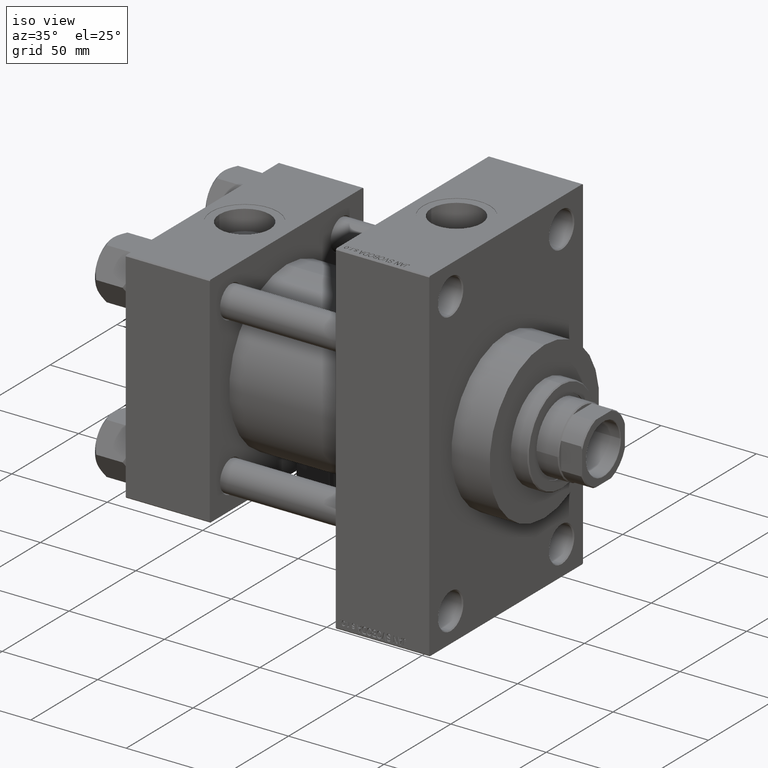
[diagram: clean part render]
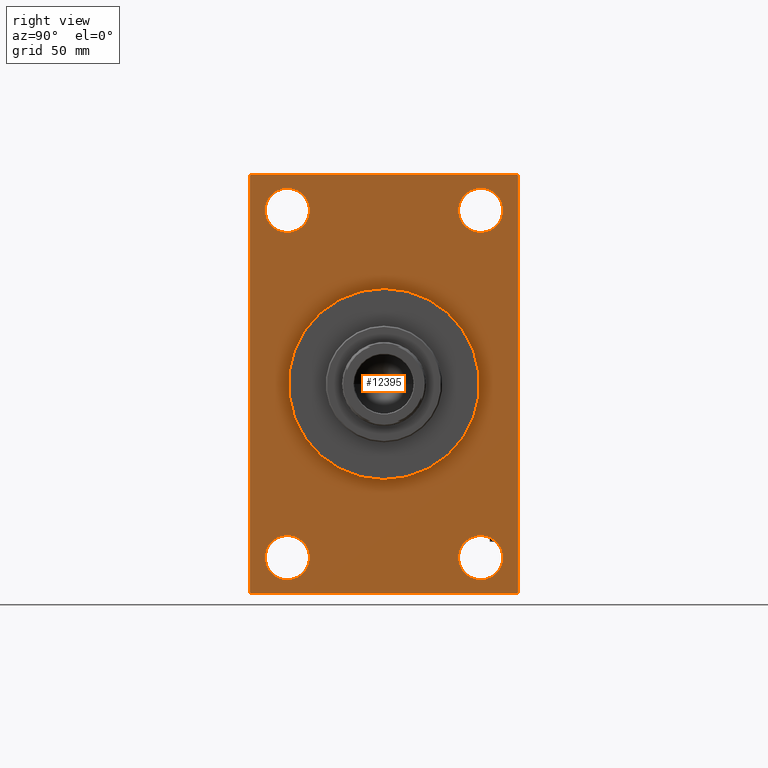
[diagram: tour spotlight — one face highlighted and labeled with its STEP entity id]
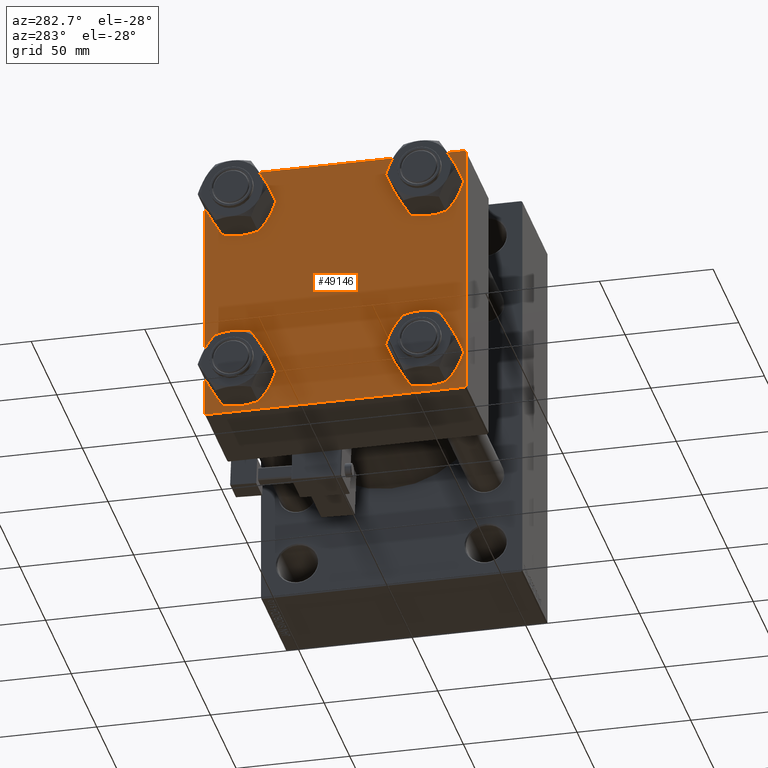
[diagram: tour spotlight — one face highlighted and labeled with its STEP entity id]
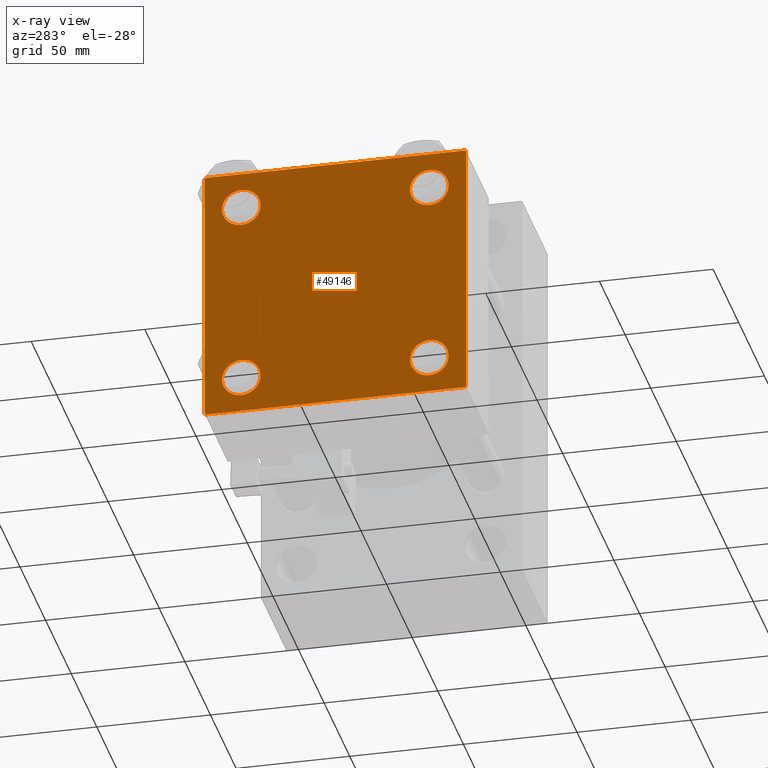
[diagram: x-ray of the same camera — body ghosted, this tour face saturated]
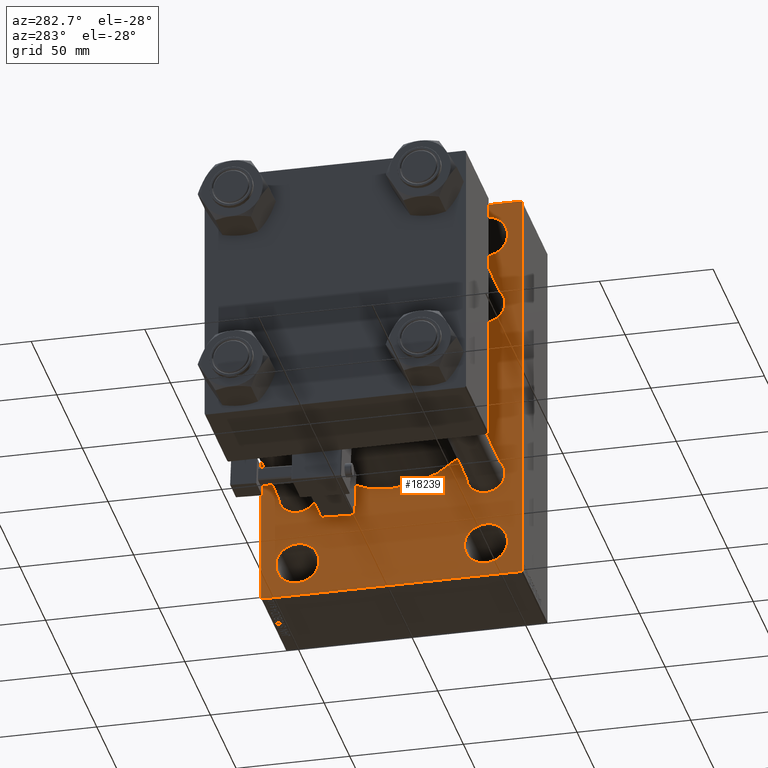
[diagram: tour spotlight — one face highlighted and labeled with its STEP entity id]
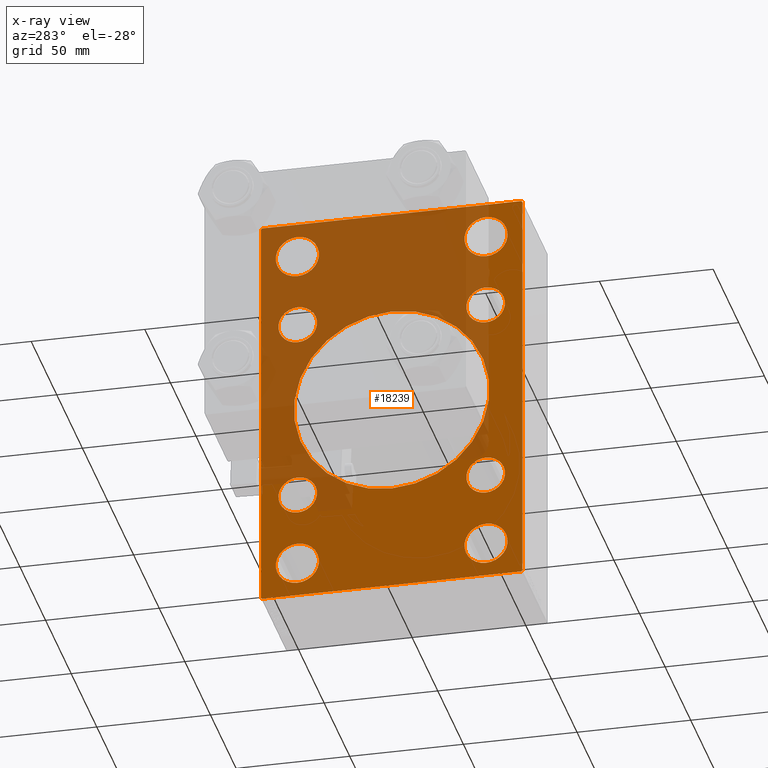
[diagram: x-ray of the same camera — body ghosted, this tour face saturated]
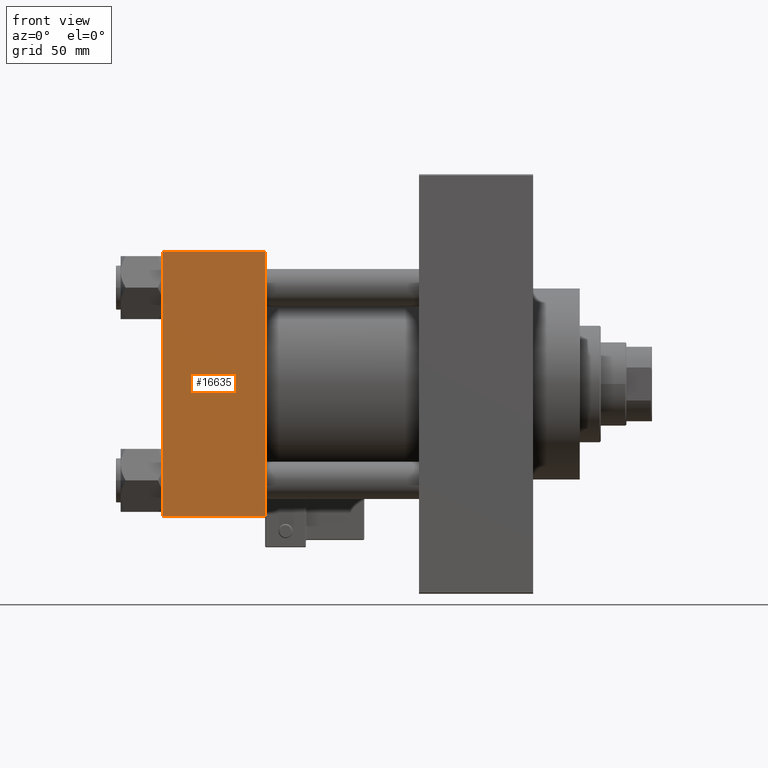
[diagram: tour spotlight — one face highlighted and labeled with its STEP entity id]
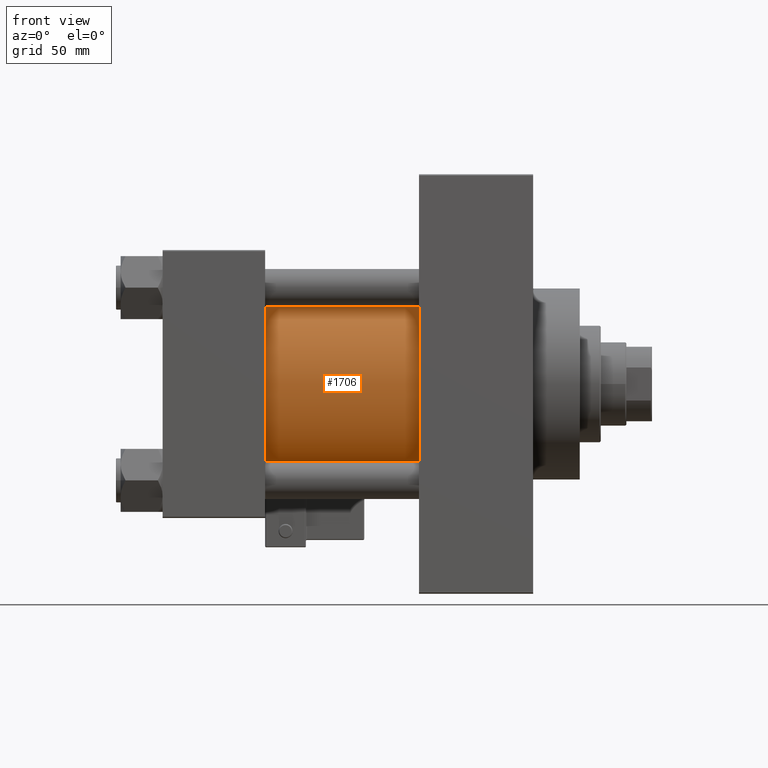
[diagram: tour spotlight — one face highlighted and labeled with its STEP entity id]
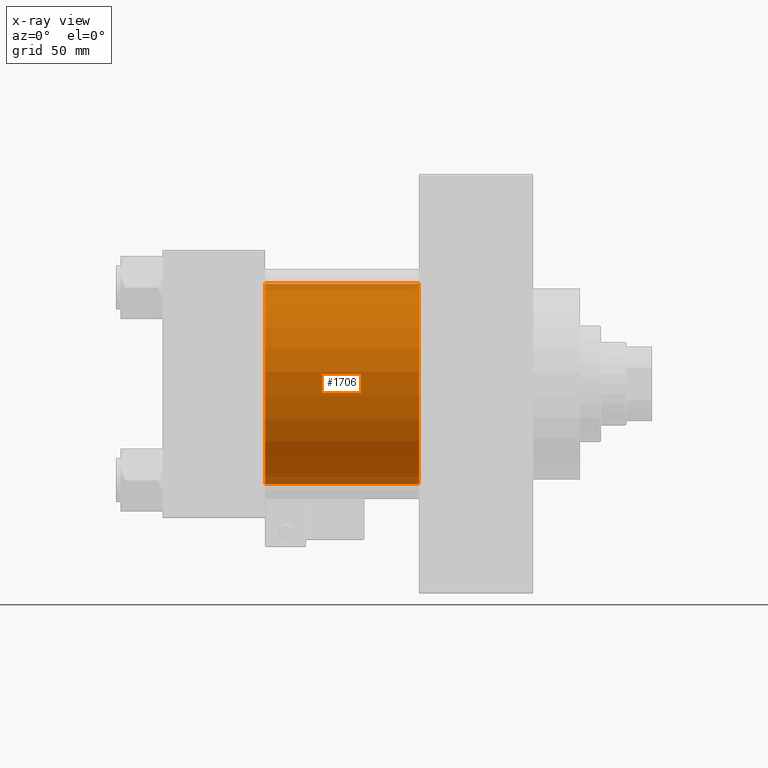
[diagram: x-ray of the same camera — body ghosted, this tour face saturated]
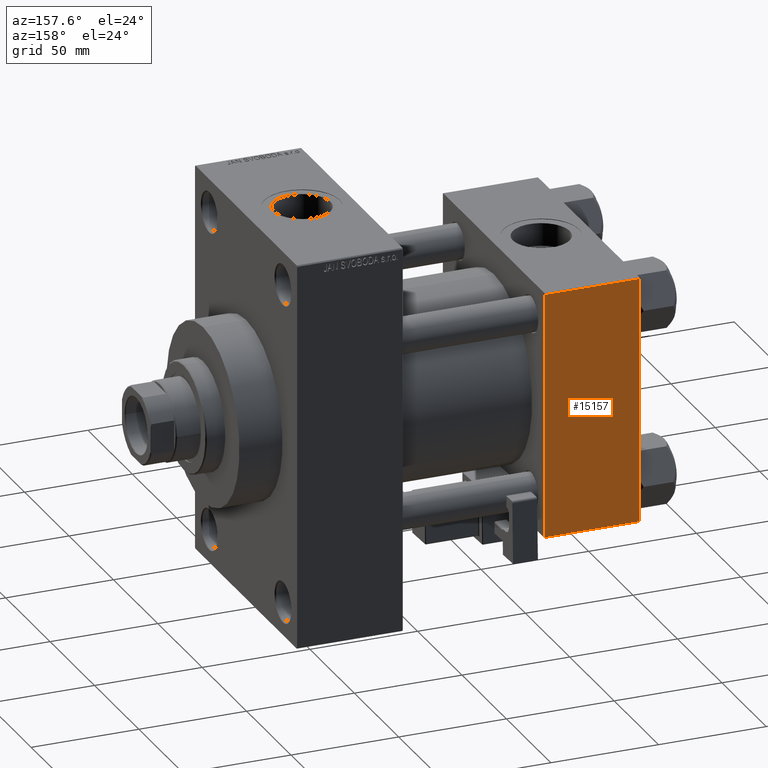
[diagram: tour spotlight — one face highlighted and labeled with its STEP entity id]
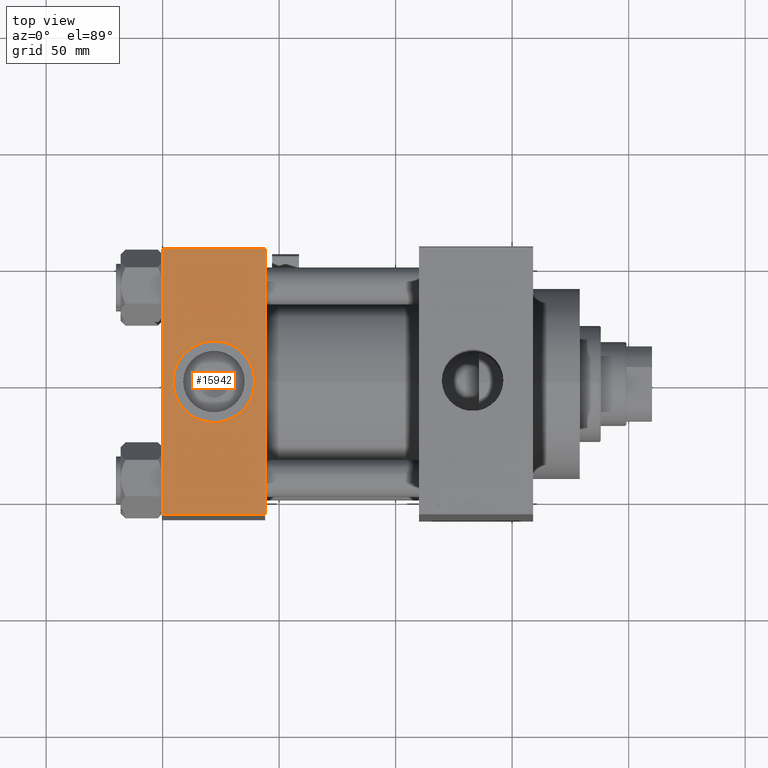
[diagram: tour spotlight — one face highlighted and labeled with its STEP entity id]
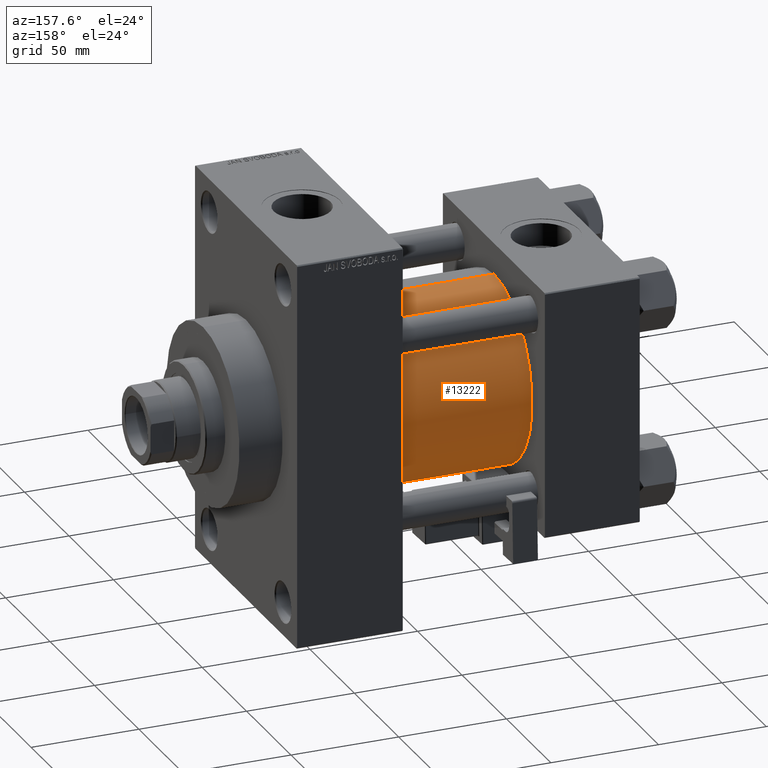
[diagram: tour spotlight — one face highlighted and labeled with its STEP entity id]
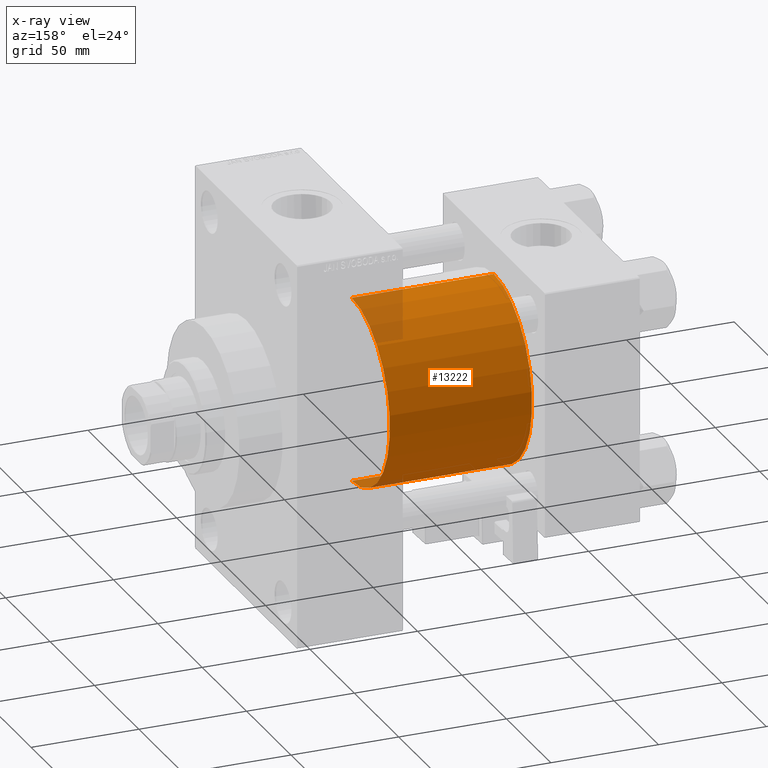
[diagram: x-ray of the same camera — body ghosted, this tour face saturated]
A machine part: a face-by-face anatomy tour. The part has 1228 B-rep faces; the first image is the clean iso view, then the 8 largest visible faces are spotlighted one at a time (largest first), each with its STEP entity span.

Face 1 — right view, entity #12395. In plain terms, the highlighted planar face has unit normal (-1, 0, 0).
Definition (entity closure, byte-faithful):
#252 = VERTEX_POINT ( 'NONE', #34812 ) ;
#1122 = AXIS2_PLACEMENT_3D ( 'NONE', #29137, #9955, #17779 ) ;
#1464 = VECTOR ( 'NONE', #22993, 1000.000000000000000 ) ;
#2154 = EDGE_LOOP ( 'NONE', ( #4168, #33081 ) ) ;
#2680 = ORIENTED_EDGE ( 'NONE', *, *, #22973, .F. ) ;
#2942 = CARTESIAN_POINT ( 'NONE',  ( 159.0000000000000000, 57.49999999999997158, 89.99999999999998579 ) ) ;
#3278 = VECTOR ( 'NONE', #23767, 1000.000000000000000 ) ;
#4168 = ORIENTED_EDGE ( 'NONE', *, *, #21699, .T. ) ;
#4208 = CARTESIAN_POINT ( 'NONE',  ( 159.0000000000000000, -56.99999999999996447, -90.00000000000001421 ) ) ;
#4661 = CARTESIAN_POINT ( 'NONE',  ( 159.0000000000000000, 56.99999999999994316, 89.99999999999998579 ) ) ;
#4983 = AXIS2_PLACEMENT_3D ( 'NONE', #28052, #31351, #32338 ) ;
#5262 = ORIENTED_EDGE ( 'NONE', *, *, #48838, .T. ) ;
#5692 = DIRECTION ( 'NONE',  ( 0.000000000000000000, 0.000000000000000000, 1.000000000000000000 ) ) ;
#6153 = CARTESIAN_POINT ( 'NONE',  ( 159.0000000000000000, -41.49999999999999289, -74.49999999999998579 ) ) ;
#6267 = ORIENTED_EDGE ( 'NONE', *, *, #39469, .T. ) ;
#6534 = EDGE_CURVE ( 'NONE', #40356, #21517, #36741, .T. ) ;
#7187 = CARTESIAN_POINT ( 'NONE',  ( 159.0000000000000000, -41.49999999999999289, 74.50000000000001421 ) ) ;
#7237 = LINE ( 'NONE', #4208, #23030 ) ;
#7438 = DIRECTION ( 'NONE',  ( 0.000000000000000000, 0.000000000000000000, 1.000000000000000000 ) ) ;
#7598 = DIRECTION ( 'NONE',  ( 0.000000000000000000, 0.000000000000000000, 1.000000000000000000 ) ) ;
#8947 = CIRCLE ( 'NONE', #15398, 9.500000000000008882 ) ;
#9444 = CARTESIAN_POINT ( 'NONE',  ( 159.0000000000000000, -41.49999999999999289, -64.99999999999997158 ) ) ;
#9554 = CIRCLE ( 'NONE', #15994, 9.500000000000008882 ) ;
#9955 = DIRECTION ( 'NONE',  ( -1.000000000000000000, 0.000000000000000000, -0.000000000000000000 ) ) ;
#9971 = DIRECTION ( 'NONE',  ( -1.000000000000000000, 0.000000000000000000, -0.000000000000000000 ) ) ;
#10328 = CARTESIAN_POINT ( 'NONE',  ( 159.0000000000000000, 41.50000000000000711, -84.00000000000000000 ) ) ;
#10483 = DIRECTION ( 'NONE',  ( -1.000000000000000000, 0.000000000000000000, -0.000000000000000000 ) ) ;
#10701 = DIRECTION ( 'NONE',  ( 0.000000000000000000, 0.000000000000000000, -1.000000000000000000 ) ) ;
#11643 = CIRCLE ( 'NONE', #14845, 9.500000000000008882 ) ;
#11673 = ORIENTED_EDGE ( 'NONE', *, *, #28663, .F. ) ;
#12395 = ADVANCED_FACE ( 'NONE', ( #22685, #17921, #29525, #40842, #41823, #26231 ), #37810, .F. ) ;
#12525 = CARTESIAN_POINT ( 'NONE',  ( 159.0000000000000000, -57.50000000000002132, -89.49999999999991473 ) ) ;
#12923 = EDGE_CURVE ( 'NONE', #38780, #34293, #38414, .T. ) ;
#13759 = VECTOR ( 'NONE', #29914, 1000.000000000000000 ) ;
#14004 = DIRECTION ( 'NONE',  ( -0.000000000000000000, 0.7071067811865574537, 0.7071067811865376918 ) ) ;
#14265 = CARTESIAN_POINT ( 'NONE',  ( 159.0000000000000000, -56.99999999999996447, -90.00000000000001421 ) ) ;
#14845 = AXIS2_PLACEMENT_3D ( 'NONE', #49370, #30254, #45604 ) ;
#15074 = DIRECTION ( 'NONE',  ( 1.000000000000000000, 0.000000000000000000, 0.000000000000000000 ) ) ;
#15245 = DIRECTION ( 'NONE',  ( 1.000000000000000000, 0.000000000000000000, 0.000000000000000000 ) ) ;
#15398 = AXIS2_PLACEMENT_3D ( 'NONE', #6153, #21544, #17758 ) ;
#15491 = CARTESIAN_POINT ( 'NONE',  ( 159.0000000000000000, 0.000000000000000000, 0.000000000000000000 ) ) ;
#15994 = AXIS2_PLACEMENT_3D ( 'NONE', #29151, #9971, #5692 ) ;
#16060 = EDGE_CURVE ( 'NONE', #32701, #41422, #9554, .T. ) ;
#16679 = AXIS2_PLACEMENT_3D ( 'NONE', #26677, #35217, #19097 ) ;
#16749 = EDGE_CURVE ( 'NONE', #21517, #40356, #16857, .T. ) ;
#16857 = CIRCLE ( 'NONE', #30556, 41.00000000000000000 ) ;
#17198 = ORIENTED_EDGE ( 'NONE', *, *, #6534, .F. ) ;
#17259 = ORIENTED_EDGE ( 'NONE', *, *, #32380, .T. ) ;
#17412 = VECTOR ( 'NONE', #24075, 1000.000000000000114 ) ;
#17511 = EDGE_LOOP ( 'NONE', ( #46931, #26584 ) ) ;
#17534 = CARTESIAN_POINT ( 'NONE',  ( 159.0000000000000000, 57.49999999999997158, 89.49999999999995737 ) ) ;
#17758 = DIRECTION ( 'NONE',  ( 0.000000000000000000, 0.000000000000000000, 1.000000000000000000 ) ) ;
#17779 = DIRECTION ( 'NONE',  ( 0.000000000000000000, 0.000000000000000000, 1.000000000000000000 ) ) ;
#17921 = FACE_BOUND ( 'NONE', #17511, .T. ) ;
#18266 = EDGE_CURVE ( 'NONE', #46061, #25191, #21583, .T. ) ;
#18533 = DIRECTION ( 'NONE',  ( 0.000000000000000000, 0.000000000000000000, -1.000000000000000000 ) ) ;
#18569 = LINE ( 'NONE', #2942, #35691 ) ;
#19097 = DIRECTION ( 'NONE',  ( 0.000000000000000000, 0.000000000000000000, 1.000000000000000000 ) ) ;
#19448 = CARTESIAN_POINT ( 'NONE',  ( 159.0000000000000000, 41.50000000000000711, 74.50000000000001421 ) ) ;
#20300 = LINE ( 'NONE', #4661, #17412 ) ;
#20363 = EDGE_CURVE ( 'NONE', #252, #40065, #45758, .T. ) ;
#21343 = CARTESIAN_POINT ( 'NONE',  ( 159.0000000000000000, -41.49999999999999289, -83.99999999999998579 ) ) ;
#21517 = VERTEX_POINT ( 'NONE', #45807 ) ;
#21544 = DIRECTION ( 'NONE',  ( -1.000000000000000000, 0.000000000000000000, -0.000000000000000000 ) ) ;
#21583 = LINE ( 'NONE', #36951, #41068 ) ;
#21699 = EDGE_CURVE ( 'NONE', #42778, #26305, #40239, .T. ) ;
#21703 = DIRECTION ( 'NONE',  ( -0.000000000000000000, 0.000000000000000000, 1.000000000000000000 ) ) ;
#21720 = VERTEX_POINT ( 'NONE', #14265 ) ;
#21748 = VECTOR ( 'NONE', #10701, 1000.000000000000000 ) ;
#22284 = CARTESIAN_POINT ( 'NONE',  ( 159.0000000000000000, 41.50000000000000711, 84.00000000000001421 ) ) ;
#22410 = ORIENTED_EDGE ( 'NONE', *, *, #16060, .T. ) ;
#22441 = CARTESIAN_POINT ( 'NONE',  ( 159.0000000000000000, 0.000000000000000000, 0.000000000000000000 ) ) ;
#22685 = FACE_BOUND ( 'NONE', #2154, .T. ) ;
#22896 = VERTEX_POINT ( 'NONE', #22284 ) ;
#22946 = ORIENTED_EDGE ( 'NONE', *, *, #40020, .T. ) ;
#22973 = EDGE_CURVE ( 'NONE', #42035, #25191, #42907, .T. ) ;
#22993 = DIRECTION ( 'NONE',  ( 0.000000000000000000, -1.000000000000000000, -1.206764157201257045E-16 ) ) ;
#23030 = VECTOR ( 'NONE', #34976, 999.9999999999998863 ) ;
#23189 = CARTESIAN_POINT ( 'NONE',  ( 159.0000000000000000, 57.49999999999997868, -89.49999999999990052 ) ) ;
#23767 = DIRECTION ( 'NONE',  ( 0.000000000000000000, 3.854941057726238467E-17, -1.000000000000000000 ) ) ;
#24075 = DIRECTION ( 'NONE',  ( 0.000000000000000000, -0.7071067811865474617, 0.7071067811865474617 ) ) ;
#24382 = CARTESIAN_POINT ( 'NONE',  ( 159.0000000000000000, 0.000000000000000000, 41.00000000000000000 ) ) ;
#24888 = ORIENTED_EDGE ( 'NONE', *, *, #45531, .T. ) ;
#25191 = VERTEX_POINT ( 'NONE', #23189 ) ;
#26231 = FACE_OUTER_BOUND ( 'NONE', #38322, .T. ) ;
#26305 = VERTEX_POINT ( 'NONE', #42362 ) ;
#26530 = CARTESIAN_POINT ( 'NONE',  ( 159.0000000000000000, -57.50000000000002132, 89.49999999999994316 ) ) ;
#26584 = ORIENTED_EDGE ( 'NONE', *, *, #12923, .T. ) ;
#26677 = CARTESIAN_POINT ( 'NONE',  ( 159.0000000000000000, -41.49999999999999289, -74.49999999999998579 ) ) ;
#26914 = CARTESIAN_POINT ( 'NONE',  ( 159.0000000000000000, -41.49999999999999289, 65.00000000000000000 ) ) ;
#27015 = CARTESIAN_POINT ( 'NONE',  ( 159.0000000000000000, 41.50000000000000711, 65.00000000000000000 ) ) ;
#27520 = CIRCLE ( 'NONE', #4983, 9.500000000000008882 ) ;
#27662 = ORIENTED_EDGE ( 'NONE', *, *, #16749, .F. ) ;
#28052 = CARTESIAN_POINT ( 'NONE',  ( 159.0000000000000000, 41.50000000000000711, -74.50000000000000000 ) ) ;
#28663 = EDGE_CURVE ( 'NONE', #46061, #21720, #45914, .T. ) ;
#28899 = EDGE_LOOP ( 'NONE', ( #22946, #24888 ) ) ;
#29137 = CARTESIAN_POINT ( 'NONE',  ( 159.0000000000000000, -41.49999999999999289, 74.50000000000001421 ) ) ;
#29151 = CARTESIAN_POINT ( 'NONE',  ( 159.0000000000000000, 41.50000000000000711, -74.50000000000000000 ) ) ;
#29525 = FACE_BOUND ( 'NONE', #34880, .T. ) ;
#29914 = DIRECTION ( 'NONE',  ( -0.000000000000000000, -0.7071067811865524577, -0.7071067811865426878 ) ) ;
#30077 = VERTEX_POINT ( 'NONE', #27015 ) ;
#30254 = DIRECTION ( 'NONE',  ( -1.000000000000000000, 0.000000000000000000, -0.000000000000000000 ) ) ;
#30556 = AXIS2_PLACEMENT_3D ( 'NONE', #15491, #15245, #18533 ) ;
#31068 = CARTESIAN_POINT ( 'NONE',  ( 159.0000000000000000, 57.49999999999997868, -90.00000000000000000 ) ) ;
#31345 = ORIENTED_EDGE ( 'NONE', *, *, #18266, .T. ) ;
#31350 = CARTESIAN_POINT ( 'NONE',  ( 159.0000000000000000, 57.49999999999997158, 89.99999999999998579 ) ) ;
#31351 = DIRECTION ( 'NONE',  ( -1.000000000000000000, 0.000000000000000000, -0.000000000000000000 ) ) ;
#32338 = DIRECTION ( 'NONE',  ( 0.000000000000000000, 0.000000000000000000, 1.000000000000000000 ) ) ;
#32380 = EDGE_CURVE ( 'NONE', #40065, #39297, #33419, .T. ) ;
#32701 = VERTEX_POINT ( 'NONE', #44672 ) ;
#32829 = AXIS2_PLACEMENT_3D ( 'NONE', #22441, #45361, #21703 ) ;
#33081 = ORIENTED_EDGE ( 'NONE', *, *, #44130, .T. ) ;
#33419 = LINE ( 'NONE', #48752, #21748 ) ;
#33962 = CARTESIAN_POINT ( 'NONE',  ( 159.0000000000000000, 56.99999999999994316, 89.99999999999998579 ) ) ;
#34151 = CIRCLE ( 'NONE', #1122, 9.500000000000008882 ) ;
#34243 = CARTESIAN_POINT ( 'NONE',  ( 159.0000000000000000, 0.000000000000000000, 0.000000000000000000 ) ) ;
#34293 = VERTEX_POINT ( 'NONE', #21343 ) ;
#34740 = DIRECTION ( 'NONE',  ( 0.000000000000000000, 0.000000000000000000, -1.000000000000000000 ) ) ;
#34812 = CARTESIAN_POINT ( 'NONE',  ( 159.0000000000000000, -56.99999999999998579, 89.99999999999997158 ) ) ;
#34832 = DIRECTION ( 'NONE',  ( -1.000000000000000000, 0.000000000000000000, -0.000000000000000000 ) ) ;
#34880 = EDGE_LOOP ( 'NONE', ( #35714, #22410 ) ) ;
#34976 = DIRECTION ( 'NONE',  ( 0.000000000000000000, 0.7071067811865574537, -0.7071067811865376918 ) ) ;
#35117 = ORIENTED_EDGE ( 'NONE', *, *, #49836, .T. ) ;
#35217 = DIRECTION ( 'NONE',  ( -1.000000000000000000, 0.000000000000000000, -0.000000000000000000 ) ) ;
#35691 = VECTOR ( 'NONE', #45777, 1000.000000000000000 ) ;
#35714 = ORIENTED_EDGE ( 'NONE', *, *, #35979, .T. ) ;
#35751 = EDGE_CURVE ( 'NONE', #34293, #38780, #8947, .T. ) ;
#35979 = EDGE_CURVE ( 'NONE', #41422, #32701, #27520, .T. ) ;
#36495 = CIRCLE ( 'NONE', #37214, 9.500000000000008882 ) ;
#36741 = CIRCLE ( 'NONE', #43158, 41.00000000000000000 ) ;
#36951 = CARTESIAN_POINT ( 'NONE',  ( 159.0000000000000000, 57.49999999999997868, -89.49999999999995737 ) ) ;
#36966 = ORIENTED_EDGE ( 'NONE', *, *, #20363, .T. ) ;
#37214 = AXIS2_PLACEMENT_3D ( 'NONE', #19448, #34832, #7598 ) ;
#37810 = PLANE ( 'NONE',  #32829 ) ;
#38322 = EDGE_LOOP ( 'NONE', ( #17259, #5262, #11673, #31345, #2680, #35117, #6267, #36966 ) ) ;
#38414 = CIRCLE ( 'NONE', #16679, 9.500000000000008882 ) ;
#38780 = VERTEX_POINT ( 'NONE', #9444 ) ;
#39297 = VERTEX_POINT ( 'NONE', #12525 ) ;
#39469 = EDGE_CURVE ( 'NONE', #40819, #252, #18569, .T. ) ;
#40020 = EDGE_CURVE ( 'NONE', #30077, #22896, #36495, .T. ) ;
#40065 = VERTEX_POINT ( 'NONE', #26530 ) ;
#40239 = CIRCLE ( 'NONE', #41850, 9.500000000000008882 ) ;
#40356 = VERTEX_POINT ( 'NONE', #24382 ) ;
#40819 = VERTEX_POINT ( 'NONE', #33962 ) ;
#40842 = FACE_BOUND ( 'NONE', #28899, .T. ) ;
#40966 = CARTESIAN_POINT ( 'NONE',  ( 159.0000000000000000, 56.99999999999992895, -90.00000000000000000 ) ) ;
#41068 = VECTOR ( 'NONE', #14004, 999.9999999999998863 ) ;
#41422 = VERTEX_POINT ( 'NONE', #10328 ) ;
#41823 = FACE_BOUND ( 'NONE', #45152, .T. ) ;
#41850 = AXIS2_PLACEMENT_3D ( 'NONE', #7187, #10483, #7438 ) ;
#42035 = VERTEX_POINT ( 'NONE', #17534 ) ;
#42362 = CARTESIAN_POINT ( 'NONE',  ( 159.0000000000000000, -41.49999999999999289, 84.00000000000001421 ) ) ;
#42475 = CARTESIAN_POINT ( 'NONE',  ( 159.0000000000000000, -57.50000000000002132, 89.49999999999994316 ) ) ;
#42778 = VERTEX_POINT ( 'NONE', #26914 ) ;
#42907 = LINE ( 'NONE', #31350, #3278 ) ;
#43158 = AXIS2_PLACEMENT_3D ( 'NONE', #34243, #15074, #34740 ) ;
#44130 = EDGE_CURVE ( 'NONE', #26305, #42778, #34151, .T. ) ;
#44672 = CARTESIAN_POINT ( 'NONE',  ( 159.0000000000000000, 41.50000000000000711, -64.99999999999998579 ) ) ;
#45152 = EDGE_LOOP ( 'NONE', ( #17198, #27662 ) ) ;
#45361 = DIRECTION ( 'NONE',  ( -1.000000000000000000, 0.000000000000000000, -0.000000000000000000 ) ) ;
#45531 = EDGE_CURVE ( 'NONE', #22896, #30077, #11643, .T. ) ;
#45604 = DIRECTION ( 'NONE',  ( 0.000000000000000000, 0.000000000000000000, 1.000000000000000000 ) ) ;
#45758 = LINE ( 'NONE', #42475, #13759 ) ;
#45777 = DIRECTION ( 'NONE',  ( 0.000000000000000000, -1.000000000000000000, -1.206764157201257291E-16 ) ) ;
#45807 = CARTESIAN_POINT ( 'NONE',  ( 159.0000000000000000, 5.021051876504148963E-15, -41.00000000000000000 ) ) ;
#45914 = LINE ( 'NONE', #31068, #1464 ) ;
#46061 = VERTEX_POINT ( 'NONE', #40966 ) ;
#46931 = ORIENTED_EDGE ( 'NONE', *, *, #35751, .T. ) ;
#48752 = CARTESIAN_POINT ( 'NONE',  ( 159.0000000000000000, -57.50000000000002132, 89.99999999999997158 ) ) ;
#48838 = EDGE_CURVE ( 'NONE', #39297, #21720, #7237, .T. ) ;
#49370 = CARTESIAN_POINT ( 'NONE',  ( 159.0000000000000000, 41.50000000000000711, 74.50000000000001421 ) ) ;
#49836 = EDGE_CURVE ( 'NONE', #42035, #40819, #20300, .T. ) ;

Face 2 — auxiliary view, entity #49146. An x-ray twin of the same camera follows (body ghosted, this face saturated) — the face is partly hidden behind the body. In plain terms, the highlighted planar face has unit normal (-1, 0, 0).
Definition (entity closure, byte-faithful):
#217 = DIRECTION ( 'NONE',  ( 0.000000000000000000, 0.000000000000000000, -1.000000000000000000 ) ) ;
#229 = CARTESIAN_POINT ( 'NONE',  ( 0.000000000000000000, -57.00000000000003553, 57.49999999999999289 ) ) ;
#267 = VERTEX_POINT ( 'NONE', #19427 ) ;
#319 = CARTESIAN_POINT ( 'NONE',  ( 0.000000000000000000, 41.34999999999999432, -32.85000000000000853 ) ) ;
#804 = FACE_BOUND ( 'NONE', #46260, .T. ) ;
#1048 = VERTEX_POINT ( 'NONE', #16746 ) ;
#1053 = FACE_BOUND ( 'NONE', #19936, .T. ) ;
#1205 = CARTESIAN_POINT ( 'NONE',  ( 0.000000000000000000, -57.50000000000000711, 57.00000000000000711 ) ) ;
#1941 = ORIENTED_EDGE ( 'NONE', *, *, #48777, .T. ) ;
#2061 = ORIENTED_EDGE ( 'NONE', *, *, #10827, .T. ) ;
#2269 = DIRECTION ( 'NONE',  ( 1.000000000000000000, -0.000000000000000000, 0.000000000000000000 ) ) ;
#2424 = DIRECTION ( 'NONE',  ( 1.000000000000000000, -0.000000000000000000, 0.000000000000000000 ) ) ;
#2761 = LINE ( 'NONE', #25968, #9241 ) ;
#2811 = VERTEX_POINT ( 'NONE', #21061 ) ;
#3592 = EDGE_CURVE ( 'NONE', #47918, #267, #5043, .T. ) ;
#3616 = EDGE_CURVE ( 'NONE', #47918, #12147, #2761, .T. ) ;
#3661 = ORIENTED_EDGE ( 'NONE', *, *, #6679, .T. ) ;
#4190 = CARTESIAN_POINT ( 'NONE',  ( 0.000000000000000000, -57.25000000000000711, -57.25000000000000711 ) ) ;
#4200 = AXIS2_PLACEMENT_3D ( 'NONE', #28433, #6234, #40508 ) ;
#4835 = PLANE ( 'NONE',  #27892 ) ;
#5043 = LINE ( 'NONE', #47625, #26968 ) ;
#5103 = CARTESIAN_POINT ( 'NONE',  ( 0.000000000000000000, 57.25000000000081712, -57.24999999999922551 ) ) ;
#5128 = VECTOR ( 'NONE', #39891, 1000.000000000000114 ) ;
#5924 = EDGE_CURVE ( 'NONE', #1048, #35772, #43120, .T. ) ;
#5955 = ORIENTED_EDGE ( 'NONE', *, *, #36110, .T. ) ;
#6234 = DIRECTION ( 'NONE',  ( 1.000000000000000000, -0.000000000000000000, 0.000000000000000000 ) ) ;
#6308 = DIRECTION ( 'NONE',  ( 1.000000000000000000, -0.000000000000000000, 0.000000000000000000 ) ) ;
#6679 = EDGE_CURVE ( 'NONE', #35772, #1048, #18213, .T. ) ;
#7368 = ORIENTED_EDGE ( 'NONE', *, *, #5924, .T. ) ;
#7702 = VERTEX_POINT ( 'NONE', #1205 ) ;
#7888 = CARTESIAN_POINT ( 'NONE',  ( 0.000000000000000000, 0.000000000000000000, 0.000000000000000000 ) ) ;
#8510 = VECTOR ( 'NONE', #17609, 1000.000000000000114 ) ;
#8562 = VERTEX_POINT ( 'NONE', #30332 ) ;
#9076 = DIRECTION ( 'NONE',  ( 0.000000000000000000, 0.7071067811865573427, -0.7071067811865376918 ) ) ;
#9241 = VECTOR ( 'NONE', #29997, 1000.000000000000000 ) ;
#9306 = AXIS2_PLACEMENT_3D ( 'NONE', #17656, #6308, #29266 ) ;
#9615 = DIRECTION ( 'NONE',  ( 0.000000000000000000, 0.000000000000000000, 1.000000000000000000 ) ) ;
#9687 = VERTEX_POINT ( 'NONE', #44883 ) ;
#9969 = CARTESIAN_POINT ( 'NONE',  ( 0.000000000000000000, -57.00000000000000711, -57.50000000000000711 ) ) ;
#10827 = EDGE_CURVE ( 'NONE', #267, #33148, #31369, .T. ) ;
#12147 = VERTEX_POINT ( 'NONE', #229 ) ;
#12302 = CARTESIAN_POINT ( 'NONE',  ( 0.000000000000000000, 57.49999999999999289, -57.00000000000000711 ) ) ;
#12565 = AXIS2_PLACEMENT_3D ( 'NONE', #44514, #2424, #17568 ) ;
#12597 = VECTOR ( 'NONE', #31124, 1000.000000000000000 ) ;
#12642 = DIRECTION ( 'NONE',  ( -1.000000000000000000, 0.000000000000000000, -0.000000000000000000 ) ) ;
#13762 = CARTESIAN_POINT ( 'NONE',  ( 0.000000000000000000, 41.34999999999999432, 41.35000000000000142 ) ) ;
#14823 = ORIENTED_EDGE ( 'NONE', *, *, #35509, .T. ) ;
#14894 = DIRECTION ( 'NONE',  ( 0.000000000000000000, 0.000000000000000000, 1.000000000000000000 ) ) ;
#16357 = VECTOR ( 'NONE', #31187, 1000.000000000000114 ) ;
#16365 = EDGE_CURVE ( 'NONE', #32055, #46494, #47429, .T. ) ;
#16746 = CARTESIAN_POINT ( 'NONE',  ( 0.000000000000000000, 41.34999999999999432, -49.85000000000000142 ) ) ;
#16775 = LINE ( 'NONE', #4190, #16357 ) ;
#17261 = ORIENTED_EDGE ( 'NONE', *, *, #17670, .T. ) ;
#17433 = CARTESIAN_POINT ( 'NONE',  ( 0.000000000000000000, 41.34999999999999432, -41.35000000000000142 ) ) ;
#17568 = DIRECTION ( 'NONE',  ( 0.000000000000000000, 0.000000000000000000, 1.000000000000000000 ) ) ;
#17609 = DIRECTION ( 'NONE',  ( -0.000000000000000000, 0.7071067811865376918, 0.7071067811865573427 ) ) ;
#17656 = CARTESIAN_POINT ( 'NONE',  ( 0.000000000000000000, 41.34999999999999432, 41.35000000000000142 ) ) ;
#17670 = EDGE_CURVE ( 'NONE', #8562, #2811, #44228, .T. ) ;
#17688 = ORIENTED_EDGE ( 'NONE', *, *, #24404, .T. ) ;
#18213 = CIRCLE ( 'NONE', #12565, 8.499999999999992895 ) ;
#18712 = CIRCLE ( 'NONE', #4200, 8.499999999999992895 ) ;
#19427 = CARTESIAN_POINT ( 'NONE',  ( 0.000000000000000000, 57.49999999999999289, 57.00000000000003553 ) ) ;
#19936 = EDGE_LOOP ( 'NONE', ( #46244, #28756 ) ) ;
#20403 = ORIENTED_EDGE ( 'NONE', *, *, #47408, .F. ) ;
#20410 = EDGE_LOOP ( 'NONE', ( #3661, #7368 ) ) ;
#20578 = CIRCLE ( 'NONE', #9306, 8.499999999999992895 ) ;
#21061 = CARTESIAN_POINT ( 'NONE',  ( 0.000000000000000000, 41.34999999999999432, 49.85000000000000142 ) ) ;
#21102 = AXIS2_PLACEMENT_3D ( 'NONE', #34072, #49403, #14894 ) ;
#22589 = CARTESIAN_POINT ( 'NONE',  ( 0.000000000000000000, 57.49999999999999289, -57.49999999999999289 ) ) ;
#22929 = CARTESIAN_POINT ( 'NONE',  ( 0.000000000000000000, -57.50000000000000711, 57.49999999999999289 ) ) ;
#23511 = CIRCLE ( 'NONE', #21102, 8.499999999999992895 ) ;
#23923 = DIRECTION ( 'NONE',  ( 0.000000000000000000, 0.000000000000000000, 1.000000000000000000 ) ) ;
#24011 = DIRECTION ( 'NONE',  ( -0.000000000000000000, 0.000000000000000000, 1.000000000000000000 ) ) ;
#24093 = AXIS2_PLACEMENT_3D ( 'NONE', #24676, #47580, #23923 ) ;
#24404 = EDGE_CURVE ( 'NONE', #9687, #33648, #38765, .T. ) ;
#24676 = CARTESIAN_POINT ( 'NONE',  ( 0.000000000000000000, -41.34999999999998721, 41.35000000000000853 ) ) ;
#25375 = DIRECTION ( 'NONE',  ( 0.000000000000000000, 0.000000000000000000, 1.000000000000000000 ) ) ;
#25968 = CARTESIAN_POINT ( 'NONE',  ( 0.000000000000000000, 57.49999999999999289, 57.50000000000000711 ) ) ;
#26941 = ORIENTED_EDGE ( 'NONE', *, *, #3592, .T. ) ;
#26968 = VECTOR ( 'NONE', #9076, 1000.000000000000114 ) ;
#27303 = CARTESIAN_POINT ( 'NONE',  ( 0.000000000000000000, -41.34999999999998721, -32.85000000000001563 ) ) ;
#27453 = ORIENTED_EDGE ( 'NONE', *, *, #3616, .F. ) ;
#27470 = EDGE_CURVE ( 'NONE', #33148, #49619, #36623, .T. ) ;
#27892 = AXIS2_PLACEMENT_3D ( 'NONE', #7888, #12642, #24011 ) ;
#28433 = CARTESIAN_POINT ( 'NONE',  ( 0.000000000000000000, -41.34999999999998721, 41.35000000000000853 ) ) ;
#28756 = ORIENTED_EDGE ( 'NONE', *, *, #40758, .T. ) ;
#28968 = LINE ( 'NONE', #36765, #8510 ) ;
#29266 = DIRECTION ( 'NONE',  ( 0.000000000000000000, 0.000000000000000000, 1.000000000000000000 ) ) ;
#29997 = DIRECTION ( 'NONE',  ( 0.000000000000000000, -1.000000000000000000, -1.206764157201257045E-16 ) ) ;
#30155 = ORIENTED_EDGE ( 'NONE', *, *, #41915, .T. ) ;
#30332 = CARTESIAN_POINT ( 'NONE',  ( 0.000000000000000000, 41.34999999999999432, 32.85000000000000853 ) ) ;
#30917 = DIRECTION ( 'NONE',  ( 0.000000000000000000, -1.000000000000000000, -1.206764157201257045E-16 ) ) ;
#31124 = DIRECTION ( 'NONE',  ( 0.000000000000000000, 0.000000000000000000, -1.000000000000000000 ) ) ;
#31187 = DIRECTION ( 'NONE',  ( 0.000000000000000000, -0.7071067811865474617, 0.7071067811865474617 ) ) ;
#31369 = LINE ( 'NONE', #46705, #12597 ) ;
#32055 = VERTEX_POINT ( 'NONE', #41317 ) ;
#32330 = VECTOR ( 'NONE', #30917, 1000.000000000000000 ) ;
#32825 = DIRECTION ( 'NONE',  ( 1.000000000000000000, -0.000000000000000000, 0.000000000000000000 ) ) ;
#33148 = VERTEX_POINT ( 'NONE', #12302 ) ;
#33541 = DIRECTION ( 'NONE',  ( 0.000000000000000000, 0.000000000000000000, 1.000000000000000000 ) ) ;
#33648 = VERTEX_POINT ( 'NONE', #27303 ) ;
#34072 = CARTESIAN_POINT ( 'NONE',  ( 0.000000000000000000, -41.34999999999998721, -41.35000000000000853 ) ) ;
#35509 = EDGE_CURVE ( 'NONE', #49619, #47544, #45761, .T. ) ;
#35772 = VERTEX_POINT ( 'NONE', #319 ) ;
#36110 = EDGE_CURVE ( 'NONE', #33648, #9687, #23511, .T. ) ;
#36623 = LINE ( 'NONE', #5103, #5128 ) ;
#36765 = CARTESIAN_POINT ( 'NONE',  ( -0.000000000000000000, -57.25000000000081712, 57.24999999999922551 ) ) ;
#36815 = LINE ( 'NONE', #22929, #40680 ) ;
#37942 = AXIS2_PLACEMENT_3D ( 'NONE', #41076, #2269, #33541 ) ;
#37965 = CARTESIAN_POINT ( 'NONE',  ( 0.000000000000000000, 57.00000000000002132, -57.49999999999999289 ) ) ;
#38765 = CIRCLE ( 'NONE', #37942, 8.499999999999992895 ) ;
#39891 = DIRECTION ( 'NONE',  ( -0.000000000000000000, -0.7071067811865376918, -0.7071067811865573427 ) ) ;
#40508 = DIRECTION ( 'NONE',  ( 0.000000000000000000, 0.000000000000000000, 1.000000000000000000 ) ) ;
#40680 = VECTOR ( 'NONE', #217, 1000.000000000000000 ) ;
#40758 = EDGE_CURVE ( 'NONE', #46494, #32055, #18712, .T. ) ;
#41012 = CARTESIAN_POINT ( 'NONE',  ( 0.000000000000000000, -41.34999999999998721, 32.85000000000001563 ) ) ;
#41076 = CARTESIAN_POINT ( 'NONE',  ( 0.000000000000000000, -41.34999999999998721, -41.35000000000000853 ) ) ;
#41108 = EDGE_LOOP ( 'NONE', ( #2061, #49704, #14823, #30155, #20403, #1941, #27453, #26941 ) ) ;
#41317 = CARTESIAN_POINT ( 'NONE',  ( 0.000000000000000000, -41.34999999999998721, 49.85000000000000853 ) ) ;
#41507 = AXIS2_PLACEMENT_3D ( 'NONE', #17433, #32825, #9615 ) ;
#41676 = EDGE_LOOP ( 'NONE', ( #42282, #17261 ) ) ;
#41813 = AXIS2_PLACEMENT_3D ( 'NONE', #13762, #44760, #25375 ) ;
#41915 = EDGE_CURVE ( 'NONE', #47544, #46189, #16775, .T. ) ;
#42282 = ORIENTED_EDGE ( 'NONE', *, *, #47339, .T. ) ;
#42416 = FACE_OUTER_BOUND ( 'NONE', #41108, .T. ) ;
#42452 = CARTESIAN_POINT ( 'NONE',  ( 0.000000000000000000, -57.50000000000000711, -57.00000000000000711 ) ) ;
#43120 = CIRCLE ( 'NONE', #41507, 8.499999999999992895 ) ;
#43395 = FACE_BOUND ( 'NONE', #41676, .T. ) ;
#44178 = CARTESIAN_POINT ( 'NONE',  ( 0.000000000000000000, 57.00000000000000711, 57.50000000000000711 ) ) ;
#44228 = CIRCLE ( 'NONE', #41813, 8.499999999999992895 ) ;
#44514 = CARTESIAN_POINT ( 'NONE',  ( 0.000000000000000000, 41.34999999999999432, -41.35000000000000142 ) ) ;
#44760 = DIRECTION ( 'NONE',  ( 1.000000000000000000, -0.000000000000000000, 0.000000000000000000 ) ) ;
#44883 = CARTESIAN_POINT ( 'NONE',  ( 0.000000000000000000, -41.34999999999998721, -49.85000000000000853 ) ) ;
#45761 = LINE ( 'NONE', #22589, #32330 ) ;
#46189 = VERTEX_POINT ( 'NONE', #42452 ) ;
#46244 = ORIENTED_EDGE ( 'NONE', *, *, #16365, .T. ) ;
#46260 = EDGE_LOOP ( 'NONE', ( #5955, #17688 ) ) ;
#46494 = VERTEX_POINT ( 'NONE', #41012 ) ;
#46685 = FACE_BOUND ( 'NONE', #20410, .T. ) ;
#46705 = CARTESIAN_POINT ( 'NONE',  ( 0.000000000000000000, 57.49999999999999289, 57.50000000000000711 ) ) ;
#47339 = EDGE_CURVE ( 'NONE', #2811, #8562, #20578, .T. ) ;
#47408 = EDGE_CURVE ( 'NONE', #7702, #46189, #36815, .T. ) ;
#47429 = CIRCLE ( 'NONE', #24093, 8.499999999999992895 ) ;
#47544 = VERTEX_POINT ( 'NONE', #9969 ) ;
#47580 = DIRECTION ( 'NONE',  ( 1.000000000000000000, -0.000000000000000000, 0.000000000000000000 ) ) ;
#47625 = CARTESIAN_POINT ( 'NONE',  ( 0.000000000000000000, 57.24999999999922551, 57.25000000000081712 ) ) ;
#47918 = VERTEX_POINT ( 'NONE', #44178 ) ;
#48777 = EDGE_CURVE ( 'NONE', #7702, #12147, #28968, .T. ) ;
#49146 = ADVANCED_FACE ( 'NONE', ( #1053, #804, #46685, #43395, #42416 ), #4835, .T. ) ;
#49403 = DIRECTION ( 'NONE',  ( 1.000000000000000000, -0.000000000000000000, 0.000000000000000000 ) ) ;
#49619 = VERTEX_POINT ( 'NONE', #37965 ) ;
#49704 = ORIENTED_EDGE ( 'NONE', *, *, #27470, .T. ) ;

Face 3 — auxiliary view, entity #18239. An x-ray twin of the same camera follows (body ghosted, this face saturated) — the face is partly hidden behind the body. In plain terms, the highlighted planar face has unit normal (-1, 0, 0).
Definition (entity closure, byte-faithful):
#201 = CARTESIAN_POINT ( 'NONE',  ( 110.0000000000000000, -41.34999999999998721, -41.35000000000000853 ) ) ;
#492 = VERTEX_POINT ( 'NONE', #26197 ) ;
#516 = EDGE_CURVE ( 'NONE', #47809, #31222, #17105, .T. ) ;
#1126 = AXIS2_PLACEMENT_3D ( 'NONE', #28370, #24591, #32409 ) ;
#2070 = DIRECTION ( 'NONE',  ( 0.000000000000000000, 0.000000000000000000, 1.000000000000000000 ) ) ;
#2075 = AXIS2_PLACEMENT_3D ( 'NONE', #20342, #40228, #27675 ) ;
#2150 = DIRECTION ( 'NONE',  ( 1.000000000000000000, -0.000000000000000000, 0.000000000000000000 ) ) ;
#2816 = EDGE_CURVE ( 'NONE', #31222, #47809, #42192, .T. ) ;
#2946 = DIRECTION ( 'NONE',  ( -0.000000000000000000, 0.7071067811865524577, 0.7071067811865426878 ) ) ;
#2974 = EDGE_CURVE ( 'NONE', #42034, #49145, #27793, .T. ) ;
#3757 = CIRCLE ( 'NONE', #5377, 9.500000000000035527 ) ;
#3870 = EDGE_CURVE ( 'NONE', #26441, #14952, #43082, .T. ) ;
#3999 = EDGE_CURVE ( 'NONE', #47859, #26190, #22997, .T. ) ;
#4046 = AXIS2_PLACEMENT_3D ( 'NONE', #33981, #49314, #31933 ) ;
#4666 = ORIENTED_EDGE ( 'NONE', *, *, #17503, .T. ) ;
#4827 = CARTESIAN_POINT ( 'NONE',  ( 110.0000000000000000, -56.99999999999996447, -90.00000000000001421 ) ) ;
#4869 = CARTESIAN_POINT ( 'NONE',  ( 110.0000000000000000, 2.663896022368408223E-15, -43.00000000000000000 ) ) ;
#5205 = DIRECTION ( 'NONE',  ( 0.000000000000000000, 0.000000000000000000, 1.000000000000000000 ) ) ;
#5377 = AXIS2_PLACEMENT_3D ( 'NONE', #49686, #42141, #41887 ) ;
#5400 = VERTEX_POINT ( 'NONE', #31752 ) ;
#5590 = VERTEX_POINT ( 'NONE', #23872 ) ;
#5602 = EDGE_CURVE ( 'NONE', #5400, #15841, #35867, .T. ) ;
#5648 = AXIS2_PLACEMENT_3D ( 'NONE', #29144, #2150, #43735 ) ;
#5685 = VECTOR ( 'NONE', #12792, 1000.000000000000000 ) ;
#5810 = DIRECTION ( 'NONE',  ( 0.000000000000000000, 0.000000000000000000, 1.000000000000000000 ) ) ;
#6087 = ORIENTED_EDGE ( 'NONE', *, *, #3870, .T. ) ;
#6149 = CIRCLE ( 'NONE', #19032, 9.500000000000035527 ) ;
#6358 = VECTOR ( 'NONE', #37004, 999.9999999999998863 ) ;
#6635 = EDGE_CURVE ( 'NONE', #29644, #13217, #6149, .T. ) ;
#6987 = FACE_OUTER_BOUND ( 'NONE', #34255, .T. ) ;
#7304 = ORIENTED_EDGE ( 'NONE', *, *, #516, .T. ) ;
#7623 = AXIS2_PLACEMENT_3D ( 'NONE', #48739, #25336, #34144 ) ;
#7738 = FACE_BOUND ( 'NONE', #31767, .T. ) ;
#8042 = AXIS2_PLACEMENT_3D ( 'NONE', #39731, #17055, #28156 ) ;
#8252 = ORIENTED_EDGE ( 'NONE', *, *, #30157, .T. ) ;
#8908 = EDGE_LOOP ( 'NONE', ( #31895, #32280 ) ) ;
#9155 = VECTOR ( 'NONE', #2946, 1000.000000000000000 ) ;
#10406 = CIRCLE ( 'NONE', #40191, 9.500000000000035527 ) ;
#10558 = ORIENTED_EDGE ( 'NONE', *, *, #2816, .T. ) ;
#10883 = AXIS2_PLACEMENT_3D ( 'NONE', #13685, #36389, #29089 ) ;
#11464 = CARTESIAN_POINT ( 'NONE',  ( 110.0000000000000000, -41.34999999999998721, 32.85000000000000142 ) ) ;
#11518 = FACE_BOUND ( 'NONE', #48432, .T. ) ;
#11648 = DIRECTION ( 'NONE',  ( 0.000000000000000000, 0.7071067811865474617, -0.7071067811865474617 ) ) ;
#11651 = CARTESIAN_POINT ( 'NONE',  ( 110.0000000000000000, -41.34999999999998721, 49.85000000000002274 ) ) ;
#11761 = CARTESIAN_POINT ( 'NONE',  ( 110.0000000000000000, 41.34999999999999432, 49.85000000000001563 ) ) ;
#11896 = EDGE_CURVE ( 'NONE', #13217, #29644, #3757, .T. ) ;
#12270 = VERTEX_POINT ( 'NONE', #46842 ) ;
#12792 = DIRECTION ( 'NONE',  ( 0.000000000000000000, -1.000000000000000000, -1.206764157201257291E-16 ) ) ;
#13217 = VERTEX_POINT ( 'NONE', #42207 ) ;
#13345 = VERTEX_POINT ( 'NONE', #48220 ) ;
#13348 = LINE ( 'NONE', #36796, #44211 ) ;
#13685 = CARTESIAN_POINT ( 'NONE',  ( 110.0000000000000000, 41.34999999999999432, -41.35000000000000142 ) ) ;
#13834 = CARTESIAN_POINT ( 'NONE',  ( 110.0000000000000000, -2.602085213965210642E-15, 0.000000000000000000 ) ) ;
#14243 = DIRECTION ( 'NONE',  ( 0.000000000000000000, 0.000000000000000000, -1.000000000000000000 ) ) ;
#14360 = CARTESIAN_POINT ( 'NONE',  ( 110.0000000000000000, 41.50000000000000711, 74.50000000000001421 ) ) ;
#14556 = FACE_BOUND ( 'NONE', #33521, .T. ) ;
#14629 = CARTESIAN_POINT ( 'NONE',  ( 110.0000000000000000, 57.49999999999997868, -89.49999999999990052 ) ) ;
#14655 = VERTEX_POINT ( 'NONE', #45016 ) ;
#14917 = CIRCLE ( 'NONE', #10883, 8.500000000000007105 ) ;
#14952 = VERTEX_POINT ( 'NONE', #32395 ) ;
#15454 = VERTEX_POINT ( 'NONE', #41319 ) ;
#15674 = EDGE_CURVE ( 'NONE', #20043, #13345, #37257, .T. ) ;
#15841 = VERTEX_POINT ( 'NONE', #11761 ) ;
#16015 = AXIS2_PLACEMENT_3D ( 'NONE', #48731, #21297, #17008 ) ;
#16309 = DIRECTION ( 'NONE',  ( 1.000000000000000000, -0.000000000000000000, 0.000000000000000000 ) ) ;
#16424 = ORIENTED_EDGE ( 'NONE', *, *, #11896, .T. ) ;
#16808 = CIRCLE ( 'NONE', #16015, 9.500000000000035527 ) ;
#16831 = DIRECTION ( 'NONE',  ( 1.000000000000000000, -0.000000000000000000, 0.000000000000000000 ) ) ;
#17008 = DIRECTION ( 'NONE',  ( 0.000000000000000000, 0.000000000000000000, 1.000000000000000000 ) ) ;
#17055 = DIRECTION ( 'NONE',  ( 1.000000000000000000, -0.000000000000000000, 0.000000000000000000 ) ) ;
#17081 = EDGE_CURVE ( 'NONE', #31532, #14655, #30335, .T. ) ;
#17105 = CIRCLE ( 'NONE', #45270, 43.00000000000000000 ) ;
#17153 = EDGE_CURVE ( 'NONE', #19667, #19318, #20068, .T. ) ;
#17252 = EDGE_LOOP ( 'NONE', ( #10558, #7304 ) ) ;
#17465 = CARTESIAN_POINT ( 'NONE',  ( 110.0000000000000000, -41.49999999999999289, 74.50000000000001421 ) ) ;
#17503 = EDGE_CURVE ( 'NONE', #15841, #5400, #24131, .T. ) ;
#17944 = VERTEX_POINT ( 'NONE', #24168 ) ;
#18239 = ADVANCED_FACE ( 'NONE', ( #33734, #11518, #26920, #26174, #41762, #49065, #7738, #14556, #41518, #6987 ), #18592, .T. ) ;
#18592 = PLANE ( 'NONE',  #4046 ) ;
#18937 = ORIENTED_EDGE ( 'NONE', *, *, #42766, .T. ) ;
#19032 = AXIS2_PLACEMENT_3D ( 'NONE', #43512, #16309, #5205 ) ;
#19318 = VERTEX_POINT ( 'NONE', #11464 ) ;
#19386 = DIRECTION ( 'NONE',  ( 0.000000000000000000, -1.000000000000000000, -1.206764157201257045E-16 ) ) ;
#19641 = CARTESIAN_POINT ( 'NONE',  ( 110.0000000000000000, 41.50000000000000711, -64.99999999999995737 ) ) ;
#19667 = VERTEX_POINT ( 'NONE', #11651 ) ;
#20043 = VERTEX_POINT ( 'NONE', #14629 ) ;
#20068 = CIRCLE ( 'NONE', #38629, 8.500000000000007105 ) ;
#20342 = CARTESIAN_POINT ( 'NONE',  ( 110.0000000000000000, 41.34999999999999432, 41.35000000000000142 ) ) ;
#20376 = CARTESIAN_POINT ( 'NONE',  ( 110.0000000000000000, 41.34999999999999432, -41.35000000000000142 ) ) ;
#21297 = DIRECTION ( 'NONE',  ( 1.000000000000000000, -0.000000000000000000, 0.000000000000000000 ) ) ;
#21574 = CARTESIAN_POINT ( 'NONE',  ( 110.0000000000000000, -57.50000000000002132, 89.99999999999997158 ) ) ;
#21758 = DIRECTION ( 'NONE',  ( 1.000000000000000000, -0.000000000000000000, 0.000000000000000000 ) ) ;
#21913 = DIRECTION ( 'NONE',  ( 1.000000000000000000, 0.000000000000000000, 0.000000000000000000 ) ) ;
#22267 = DIRECTION ( 'NONE',  ( 0.000000000000000000, 0.000000000000000000, 1.000000000000000000 ) ) ;
#22905 = ORIENTED_EDGE ( 'NONE', *, *, #47875, .T. ) ;
#22997 = CIRCLE ( 'NONE', #31848, 9.500000000000035527 ) ;
#23054 = EDGE_LOOP ( 'NONE', ( #35523, #48736 ) ) ;
#23654 = DIRECTION ( 'NONE',  ( 1.000000000000000000, -0.000000000000000000, 0.000000000000000000 ) ) ;
#23872 = CARTESIAN_POINT ( 'NONE',  ( 110.0000000000000000, 41.50000000000000711, -84.00000000000002842 ) ) ;
#24131 = CIRCLE ( 'NONE', #8042, 8.500000000000007105 ) ;
#24168 = CARTESIAN_POINT ( 'NONE',  ( 110.0000000000000000, -57.50000000000002132, -89.49999999999991473 ) ) ;
#24414 = LINE ( 'NONE', #43298, #5685 ) ;
#24461 = CARTESIAN_POINT ( 'NONE',  ( 110.0000000000000000, 41.34999999999999432, -49.85000000000001563 ) ) ;
#24591 = DIRECTION ( 'NONE',  ( 1.000000000000000000, 0.000000000000000000, 0.000000000000000000 ) ) ;
#25336 = DIRECTION ( 'NONE',  ( 1.000000000000000000, -0.000000000000000000, 0.000000000000000000 ) ) ;
#25795 = CARTESIAN_POINT ( 'NONE',  ( 110.0000000000000000, 41.50000000000000711, 74.50000000000001421 ) ) ;
#25889 = VERTEX_POINT ( 'NONE', #44628 ) ;
#26060 = CARTESIAN_POINT ( 'NONE',  ( 110.0000000000000000, 73.49999999999995737, 73.49999999999995737 ) ) ;
#26174 = FACE_BOUND ( 'NONE', #8908, .T. ) ;
#26190 = VERTEX_POINT ( 'NONE', #35188 ) ;
#26197 = CARTESIAN_POINT ( 'NONE',  ( 110.0000000000000000, -41.49999999999999289, 84.00000000000004263 ) ) ;
#26208 = AXIS2_PLACEMENT_3D ( 'NONE', #20376, #16831, #46582 ) ;
#26441 = VERTEX_POINT ( 'NONE', #24461 ) ;
#26920 = FACE_BOUND ( 'NONE', #37082, .T. ) ;
#26964 = LINE ( 'NONE', #46337, #40468 ) ;
#27675 = DIRECTION ( 'NONE',  ( 0.000000000000000000, 0.000000000000000000, 1.000000000000000000 ) ) ;
#27793 = CIRCLE ( 'NONE', #7623, 8.500000000000007105 ) ;
#27925 = DIRECTION ( 'NONE',  ( 0.000000000000000000, 0.000000000000000000, 1.000000000000000000 ) ) ;
#28156 = DIRECTION ( 'NONE',  ( 0.000000000000000000, 0.000000000000000000, 1.000000000000000000 ) ) ;
#28370 = CARTESIAN_POINT ( 'NONE',  ( 110.0000000000000000, -2.602085213965210642E-15, 0.000000000000000000 ) ) ;
#29089 = DIRECTION ( 'NONE',  ( 0.000000000000000000, 0.000000000000000000, 1.000000000000000000 ) ) ;
#29119 = ORIENTED_EDGE ( 'NONE', *, *, #29230, .T. ) ;
#29144 = CARTESIAN_POINT ( 'NONE',  ( 110.0000000000000000, -41.49999999999999289, 74.50000000000001421 ) ) ;
#29146 = LINE ( 'NONE', #21574, #43732 ) ;
#29230 = EDGE_CURVE ( 'NONE', #19318, #19667, #38537, .T. ) ;
#29566 = DIRECTION ( 'NONE',  ( 1.000000000000000000, -0.000000000000000000, 0.000000000000000000 ) ) ;
#29601 = EDGE_CURVE ( 'NONE', #33089, #5590, #16808, .T. ) ;
#29644 = VERTEX_POINT ( 'NONE', #37165 ) ;
#29758 = DIRECTION ( 'NONE',  ( 1.000000000000000000, -0.000000000000000000, 0.000000000000000000 ) ) ;
#29938 = LINE ( 'NONE', #45283, #9155 ) ;
#30072 = DIRECTION ( 'NONE',  ( 0.000000000000000000, 0.000000000000000000, 1.000000000000000000 ) ) ;
#30087 = DIRECTION ( 'NONE',  ( 1.000000000000000000, -0.000000000000000000, 0.000000000000000000 ) ) ;
#30157 = EDGE_CURVE ( 'NONE', #34869, #17944, #13348, .T. ) ;
#30189 = CARTESIAN_POINT ( 'NONE',  ( 110.0000000000000000, 41.50000000000000711, -74.50000000000000000 ) ) ;
#30335 = LINE ( 'NONE', #26060, #37766 ) ;
#30363 = EDGE_CURVE ( 'NONE', #49145, #42034, #30536, .T. ) ;
#30536 = CIRCLE ( 'NONE', #33768, 8.500000000000007105 ) ;
#30853 = EDGE_CURVE ( 'NONE', #492, #15454, #10406, .T. ) ;
#31046 = EDGE_CURVE ( 'NONE', #14655, #20043, #42858, .T. ) ;
#31222 = VERTEX_POINT ( 'NONE', #34766 ) ;
#31532 = VERTEX_POINT ( 'NONE', #47758 ) ;
#31752 = CARTESIAN_POINT ( 'NONE',  ( 110.0000000000000000, 41.34999999999999432, 32.84999999999999432 ) ) ;
#31767 = EDGE_LOOP ( 'NONE', ( #22905, #6087 ) ) ;
#31848 = AXIS2_PLACEMENT_3D ( 'NONE', #25795, #21758, #30072 ) ;
#31895 = ORIENTED_EDGE ( 'NONE', *, *, #47400, .T. ) ;
#31933 = DIRECTION ( 'NONE',  ( -0.000000000000000000, 0.000000000000000000, 1.000000000000000000 ) ) ;
#32235 = EDGE_CURVE ( 'NONE', #15454, #492, #49089, .T. ) ;
#32280 = ORIENTED_EDGE ( 'NONE', *, *, #3999, .T. ) ;
#32367 = CARTESIAN_POINT ( 'NONE',  ( 110.0000000000000000, 41.50000000000000711, 64.99999999999997158 ) ) ;
#32395 = CARTESIAN_POINT ( 'NONE',  ( 110.0000000000000000, 41.34999999999999432, -32.84999999999999432 ) ) ;
#32409 = DIRECTION ( 'NONE',  ( 0.000000000000000000, 0.000000000000000000, -1.000000000000000000 ) ) ;
#32420 = CARTESIAN_POINT ( 'NONE',  ( 110.0000000000000000, -41.34999999999998721, -49.85000000000002274 ) ) ;
#33089 = VERTEX_POINT ( 'NONE', #19641 ) ;
#33225 = EDGE_CURVE ( 'NONE', #31532, #25889, #24414, .T. ) ;
#33521 = EDGE_LOOP ( 'NONE', ( #46985, #48295 ) ) ;
#33734 = FACE_BOUND ( 'NONE', #23054, .T. ) ;
#33768 = AXIS2_PLACEMENT_3D ( 'NONE', #201, #23654, #42296 ) ;
#33981 = CARTESIAN_POINT ( 'NONE',  ( 110.0000000000000000, 0.000000000000000000, 0.000000000000000000 ) ) ;
#34144 = DIRECTION ( 'NONE',  ( 0.000000000000000000, 0.000000000000000000, 1.000000000000000000 ) ) ;
#34255 = EDGE_LOOP ( 'NONE', ( #38833, #8252, #38337, #48041, #41617, #36075, #44443, #37222 ) ) ;
#34766 = CARTESIAN_POINT ( 'NONE',  ( 110.0000000000000000, -2.602085213965210642E-15, 43.00000000000000000 ) ) ;
#34827 = CARTESIAN_POINT ( 'NONE',  ( 110.0000000000000000, 57.49999999999997158, 89.99999999999998579 ) ) ;
#34869 = VERTEX_POINT ( 'NONE', #4827 ) ;
#34968 = DIRECTION ( 'NONE',  ( 0.000000000000000000, 0.000000000000000000, 1.000000000000000000 ) ) ;
#35055 = CIRCLE ( 'NONE', #48729, 9.500000000000035527 ) ;
#35188 = CARTESIAN_POINT ( 'NONE',  ( 110.0000000000000000, 41.50000000000000711, 84.00000000000004263 ) ) ;
#35206 = ORIENTED_EDGE ( 'NONE', *, *, #17153, .T. ) ;
#35523 = ORIENTED_EDGE ( 'NONE', *, *, #30853, .T. ) ;
#35554 = ORIENTED_EDGE ( 'NONE', *, *, #6635, .T. ) ;
#35867 = CIRCLE ( 'NONE', #2075, 8.500000000000007105 ) ;
#36075 = ORIENTED_EDGE ( 'NONE', *, *, #17081, .T. ) ;
#36389 = DIRECTION ( 'NONE',  ( 1.000000000000000000, -0.000000000000000000, 0.000000000000000000 ) ) ;
#36796 = CARTESIAN_POINT ( 'NONE',  ( 110.0000000000000000, -73.49999999999918998, -73.50000000000123634 ) ) ;
#37004 = DIRECTION ( 'NONE',  ( -0.000000000000000000, -0.7071067811865574537, -0.7071067811865376918 ) ) ;
#37082 = EDGE_LOOP ( 'NONE', ( #37896, #18937 ) ) ;
#37165 = CARTESIAN_POINT ( 'NONE',  ( 110.0000000000000000, -41.49999999999999289, -64.99999999999994316 ) ) ;
#37222 = ORIENTED_EDGE ( 'NONE', *, *, #15674, .T. ) ;
#37257 = LINE ( 'NONE', #48575, #6358 ) ;
#37766 = VECTOR ( 'NONE', #11648, 1000.000000000000114 ) ;
#37896 = ORIENTED_EDGE ( 'NONE', *, *, #29601, .T. ) ;
#37991 = DIRECTION ( 'NONE',  ( 1.000000000000000000, -0.000000000000000000, 0.000000000000000000 ) ) ;
#38132 = CARTESIAN_POINT ( 'NONE',  ( 110.0000000000000000, -41.34999999999998721, 41.35000000000000853 ) ) ;
#38337 = ORIENTED_EDGE ( 'NONE', *, *, #43035, .F. ) ;
#38537 = CIRCLE ( 'NONE', #42559, 8.500000000000007105 ) ;
#38629 = AXIS2_PLACEMENT_3D ( 'NONE', #38132, #30087, #22267 ) ;
#38639 = CARTESIAN_POINT ( 'NONE',  ( 110.0000000000000000, -41.34999999999998721, -32.85000000000000142 ) ) ;
#38833 = ORIENTED_EDGE ( 'NONE', *, *, #41547, .T. ) ;
#39080 = DIRECTION ( 'NONE',  ( 0.000000000000000000, 3.854941057726238467E-17, -1.000000000000000000 ) ) ;
#39252 = CARTESIAN_POINT ( 'NONE',  ( 110.0000000000000000, -41.34999999999998721, 41.35000000000000853 ) ) ;
#39287 = ORIENTED_EDGE ( 'NONE', *, *, #5602, .T. ) ;
#39672 = AXIS2_PLACEMENT_3D ( 'NONE', #30189, #37991, #34968 ) ;
#39731 = CARTESIAN_POINT ( 'NONE',  ( 110.0000000000000000, 41.34999999999999432, 41.35000000000000142 ) ) ;
#40191 = AXIS2_PLACEMENT_3D ( 'NONE', #17465, #29566, #2070 ) ;
#40228 = DIRECTION ( 'NONE',  ( 1.000000000000000000, -0.000000000000000000, 0.000000000000000000 ) ) ;
#40468 = VECTOR ( 'NONE', #19386, 1000.000000000000000 ) ;
#41319 = CARTESIAN_POINT ( 'NONE',  ( 110.0000000000000000, -41.49999999999999289, 64.99999999999997158 ) ) ;
#41518 = FACE_BOUND ( 'NONE', #17252, .T. ) ;
#41547 = EDGE_CURVE ( 'NONE', #13345, #34869, #26964, .T. ) ;
#41617 = ORIENTED_EDGE ( 'NONE', *, *, #33225, .F. ) ;
#41762 = FACE_BOUND ( 'NONE', #45951, .T. ) ;
#41887 = DIRECTION ( 'NONE',  ( 0.000000000000000000, 0.000000000000000000, 1.000000000000000000 ) ) ;
#42034 = VERTEX_POINT ( 'NONE', #32420 ) ;
#42141 = DIRECTION ( 'NONE',  ( 1.000000000000000000, -0.000000000000000000, 0.000000000000000000 ) ) ;
#42192 = CIRCLE ( 'NONE', #1126, 43.00000000000000000 ) ;
#42207 = CARTESIAN_POINT ( 'NONE',  ( 110.0000000000000000, -41.49999999999999289, -84.00000000000001421 ) ) ;
#42296 = DIRECTION ( 'NONE',  ( 0.000000000000000000, 0.000000000000000000, 1.000000000000000000 ) ) ;
#42559 = AXIS2_PLACEMENT_3D ( 'NONE', #39252, #47546, #27925 ) ;
#42766 = EDGE_CURVE ( 'NONE', #5590, #33089, #47726, .T. ) ;
#42858 = LINE ( 'NONE', #34827, #44246 ) ;
#43035 = EDGE_CURVE ( 'NONE', #12270, #17944, #29146, .T. ) ;
#43082 = CIRCLE ( 'NONE', #26208, 8.500000000000007105 ) ;
#43298 = CARTESIAN_POINT ( 'NONE',  ( 110.0000000000000000, 57.49999999999997158, 89.99999999999998579 ) ) ;
#43512 = CARTESIAN_POINT ( 'NONE',  ( 110.0000000000000000, -41.49999999999999289, -74.49999999999998579 ) ) ;
#43732 = VECTOR ( 'NONE', #14243, 1000.000000000000000 ) ;
#43735 = DIRECTION ( 'NONE',  ( 0.000000000000000000, 0.000000000000000000, 1.000000000000000000 ) ) ;
#43930 = EDGE_CURVE ( 'NONE', #12270, #25889, #29938, .T. ) ;
#44211 = VECTOR ( 'NONE', #47612, 999.9999999999998863 ) ;
#44246 = VECTOR ( 'NONE', #39080, 1000.000000000000000 ) ;
#44443 = ORIENTED_EDGE ( 'NONE', *, *, #31046, .T. ) ;
#44628 = CARTESIAN_POINT ( 'NONE',  ( 110.0000000000000000, -56.99999999999998579, 89.99999999999997158 ) ) ;
#45016 = CARTESIAN_POINT ( 'NONE',  ( 110.0000000000000000, 57.49999999999997158, 89.49999999999995737 ) ) ;
#45270 = AXIS2_PLACEMENT_3D ( 'NONE', #13834, #21913, #48847 ) ;
#45283 = CARTESIAN_POINT ( 'NONE',  ( 110.0000000000000000, -73.49999999999957367, 73.50000000000059686 ) ) ;
#45312 = EDGE_LOOP ( 'NONE', ( #4666, #39287 ) ) ;
#45951 = EDGE_LOOP ( 'NONE', ( #35206, #29119 ) ) ;
#46337 = CARTESIAN_POINT ( 'NONE',  ( 110.0000000000000000, 57.49999999999997868, -90.00000000000000000 ) ) ;
#46582 = DIRECTION ( 'NONE',  ( 0.000000000000000000, 0.000000000000000000, 1.000000000000000000 ) ) ;
#46842 = CARTESIAN_POINT ( 'NONE',  ( 110.0000000000000000, -57.50000000000002132, 89.49999999999994316 ) ) ;
#46985 = ORIENTED_EDGE ( 'NONE', *, *, #30363, .T. ) ;
#47400 = EDGE_CURVE ( 'NONE', #26190, #47859, #35055, .T. ) ;
#47546 = DIRECTION ( 'NONE',  ( 1.000000000000000000, -0.000000000000000000, 0.000000000000000000 ) ) ;
#47612 = DIRECTION ( 'NONE',  ( 0.000000000000000000, -0.7071067811865574537, 0.7071067811865376918 ) ) ;
#47726 = CIRCLE ( 'NONE', #39672, 9.500000000000035527 ) ;
#47758 = CARTESIAN_POINT ( 'NONE',  ( 110.0000000000000000, 56.99999999999994316, 89.99999999999998579 ) ) ;
#47809 = VERTEX_POINT ( 'NONE', #4869 ) ;
#47859 = VERTEX_POINT ( 'NONE', #32367 ) ;
#47875 = EDGE_CURVE ( 'NONE', #14952, #26441, #14917, .T. ) ;
#48041 = ORIENTED_EDGE ( 'NONE', *, *, #43930, .T. ) ;
#48220 = CARTESIAN_POINT ( 'NONE',  ( 110.0000000000000000, 56.99999999999992895, -90.00000000000000000 ) ) ;
#48295 = ORIENTED_EDGE ( 'NONE', *, *, #2974, .T. ) ;
#48432 = EDGE_LOOP ( 'NONE', ( #35554, #16424 ) ) ;
#48575 = CARTESIAN_POINT ( 'NONE',  ( 110.0000000000000000, 73.49999999999916156, -73.50000000000122213 ) ) ;
#48729 = AXIS2_PLACEMENT_3D ( 'NONE', #14360, #29758, #5810 ) ;
#48731 = CARTESIAN_POINT ( 'NONE',  ( 110.0000000000000000, 41.50000000000000711, -74.50000000000000000 ) ) ;
#48736 = ORIENTED_EDGE ( 'NONE', *, *, #32235, .T. ) ;
#48739 = CARTESIAN_POINT ( 'NONE',  ( 110.0000000000000000, -41.34999999999998721, -41.35000000000000853 ) ) ;
#48847 = DIRECTION ( 'NONE',  ( 0.000000000000000000, 0.000000000000000000, -1.000000000000000000 ) ) ;
#49065 = FACE_BOUND ( 'NONE', #45312, .T. ) ;
#49089 = CIRCLE ( 'NONE', #5648, 9.500000000000035527 ) ;
#49145 = VERTEX_POINT ( 'NONE', #38639 ) ;
#49314 = DIRECTION ( 'NONE',  ( -1.000000000000000000, 0.000000000000000000, -0.000000000000000000 ) ) ;
#49686 = CARTESIAN_POINT ( 'NONE',  ( 110.0000000000000000, -41.49999999999999289, -74.49999999999998579 ) ) ;

Face 4 — front view, entity #16635. In plain terms, the highlighted planar face has unit normal (0, 1, 0).
Definition (entity closure, byte-faithful):
#217 = DIRECTION ( 'NONE',  ( 0.000000000000000000, 0.000000000000000000, -1.000000000000000000 ) ) ;
#376 = EDGE_CURVE ( 'NONE', #22752, #7702, #32268, .T. ) ;
#547 = ORIENTED_EDGE ( 'NONE', *, *, #23477, .F. ) ;
#902 = CARTESIAN_POINT ( 'NONE',  ( 44.00000000000000000, -57.50000000000000711, -57.00000000000000711 ) ) ;
#1205 = CARTESIAN_POINT ( 'NONE',  ( 0.000000000000000000, -57.50000000000000711, 57.00000000000000711 ) ) ;
#1495 = DIRECTION ( 'NONE',  ( -1.000000000000000000, 0.000000000000000000, 0.000000000000000000 ) ) ;
#7702 = VERTEX_POINT ( 'NONE', #1205 ) ;
#7968 = VERTEX_POINT ( 'NONE', #902 ) ;
#11076 = EDGE_LOOP ( 'NONE', ( #13066, #29338, #547, #38343 ) ) ;
#11401 = VECTOR ( 'NONE', #47174, 1000.000000000000000 ) ;
#12450 = CARTESIAN_POINT ( 'NONE',  ( 44.00000000000000000, -57.50000000000000711, 57.00000000000000711 ) ) ;
#13066 = ORIENTED_EDGE ( 'NONE', *, *, #47408, .T. ) ;
#14412 = AXIS2_PLACEMENT_3D ( 'NONE', #21338, #25365, #33430 ) ;
#16635 = ADVANCED_FACE ( 'NONE', ( #18049 ), #25121, .F. ) ;
#17387 = CARTESIAN_POINT ( 'NONE',  ( 44.00000000000000000, -57.50000000000000711, 57.49999999999999289 ) ) ;
#18049 = FACE_OUTER_BOUND ( 'NONE', #11076, .T. ) ;
#20351 = VECTOR ( 'NONE', #1495, 1000.000000000000000 ) ;
#20420 = DIRECTION ( 'NONE',  ( 0.000000000000000000, 0.000000000000000000, -1.000000000000000000 ) ) ;
#21338 = CARTESIAN_POINT ( 'NONE',  ( 44.00000000000000000, -57.50000000000000711, 57.49999999999999289 ) ) ;
#22752 = VERTEX_POINT ( 'NONE', #12450 ) ;
#22929 = CARTESIAN_POINT ( 'NONE',  ( 0.000000000000000000, -57.50000000000000711, 57.49999999999999289 ) ) ;
#23477 = EDGE_CURVE ( 'NONE', #22752, #7968, #28483, .T. ) ;
#24773 = CARTESIAN_POINT ( 'NONE',  ( 44.00000000000000000, -57.50000000000000711, -57.00000000000000711 ) ) ;
#25121 = PLANE ( 'NONE',  #14412 ) ;
#25365 = DIRECTION ( 'NONE',  ( -0.000000000000000000, 1.000000000000000000, 0.000000000000000000 ) ) ;
#28483 = LINE ( 'NONE', #17387, #43532 ) ;
#29338 = ORIENTED_EDGE ( 'NONE', *, *, #35920, .T. ) ;
#32268 = LINE ( 'NONE', #36039, #20351 ) ;
#33430 = DIRECTION ( 'NONE',  ( 0.000000000000000000, -0.000000000000000000, 1.000000000000000000 ) ) ;
#35920 = EDGE_CURVE ( 'NONE', #46189, #7968, #43898, .T. ) ;
#36039 = CARTESIAN_POINT ( 'NONE',  ( 44.00000000000000000, -57.50000000000000711, 57.00000000000000711 ) ) ;
#36815 = LINE ( 'NONE', #22929, #40680 ) ;
#38343 = ORIENTED_EDGE ( 'NONE', *, *, #376, .T. ) ;
#40680 = VECTOR ( 'NONE', #217, 1000.000000000000000 ) ;
#42452 = CARTESIAN_POINT ( 'NONE',  ( 0.000000000000000000, -57.50000000000000711, -57.00000000000000711 ) ) ;
#43532 = VECTOR ( 'NONE', #20420, 1000.000000000000000 ) ;
#43898 = LINE ( 'NONE', #24773, #11401 ) ;
#46189 = VERTEX_POINT ( 'NONE', #42452 ) ;
#47174 = DIRECTION ( 'NONE',  ( 1.000000000000000000, 0.000000000000000000, 0.000000000000000000 ) ) ;
#47408 = EDGE_CURVE ( 'NONE', #7702, #46189, #36815, .T. ) ;

Face 5 — front view, entity #1706. An x-ray twin of the same camera follows (body ghosted, this face saturated) — the face is partly hidden behind the body. In plain terms, the highlighted cylindrical surface (partial cylindrical patch) has radius 43 mm, axis along (-1, -0, -0).
Definition (entity closure, byte-faithful):
#257 = EDGE_CURVE ( 'NONE', #36861, #34799, #19562, .T. ) ;
#741 = CARTESIAN_POINT ( 'NONE',  ( 110.0000000000000000, -2.602085213965210642E-15, 43.00000000000000000 ) ) ;
#1126 = AXIS2_PLACEMENT_3D ( 'NONE', #28370, #24591, #32409 ) ;
#1176 = FACE_OUTER_BOUND ( 'NONE', #22806, .T. ) ;
#1261 = EDGE_CURVE ( 'NONE', #31222, #36861, #12577, .T. ) ;
#1521 = VECTOR ( 'NONE', #21387, 1000.000000000000000 ) ;
#1706 = ADVANCED_FACE ( 'NONE', ( #1176 ), #35977, .T. ) ;
#2816 = EDGE_CURVE ( 'NONE', #31222, #47809, #42192, .T. ) ;
#4532 = DIRECTION ( 'NONE',  ( -1.000000000000000000, -0.000000000000000000, -0.000000000000000000 ) ) ;
#4869 = CARTESIAN_POINT ( 'NONE',  ( 110.0000000000000000, 2.663896022368408223E-15, -43.00000000000000000 ) ) ;
#5996 = CARTESIAN_POINT ( 'NONE',  ( 110.0000000000000000, 2.663896022368408223E-15, -43.00000000000000000 ) ) ;
#7326 = DIRECTION ( 'NONE',  ( 1.000000000000000000, -0.000000000000000000, 0.000000000000000000 ) ) ;
#11407 = CARTESIAN_POINT ( 'NONE',  ( 44.00000000000000000, 2.663896022368408223E-15, -43.00000000000000000 ) ) ;
#11605 = VECTOR ( 'NONE', #4532, 1000.000000000000000 ) ;
#12094 = CARTESIAN_POINT ( 'NONE',  ( 44.00000000000000000, -2.602085213965210642E-15, 0.000000000000000000 ) ) ;
#12577 = LINE ( 'NONE', #741, #11605 ) ;
#14891 = DIRECTION ( 'NONE',  ( 0.000000000000000000, 0.000000000000000000, 1.000000000000000000 ) ) ;
#15786 = EDGE_CURVE ( 'NONE', #47809, #34799, #17351, .T. ) ;
#16073 = ORIENTED_EDGE ( 'NONE', *, *, #2816, .F. ) ;
#17069 = CARTESIAN_POINT ( 'NONE',  ( 110.0000000000000000, -2.602085213965210642E-15, 0.000000000000000000 ) ) ;
#17351 = LINE ( 'NONE', #5996, #1521 ) ;
#17747 = ORIENTED_EDGE ( 'NONE', *, *, #257, .T. ) ;
#19562 = CIRCLE ( 'NONE', #26010, 43.00000000000000000 ) ;
#21387 = DIRECTION ( 'NONE',  ( -1.000000000000000000, -0.000000000000000000, -0.000000000000000000 ) ) ;
#22806 = EDGE_LOOP ( 'NONE', ( #32408, #16073, #44397, #17747 ) ) ;
#23349 = CARTESIAN_POINT ( 'NONE',  ( 44.00000000000000000, -2.602085213965210642E-15, 43.00000000000000000 ) ) ;
#24591 = DIRECTION ( 'NONE',  ( 1.000000000000000000, 0.000000000000000000, 0.000000000000000000 ) ) ;
#26010 = AXIS2_PLACEMENT_3D ( 'NONE', #12094, #7326, #14891 ) ;
#28370 = CARTESIAN_POINT ( 'NONE',  ( 110.0000000000000000, -2.602085213965210642E-15, 0.000000000000000000 ) ) ;
#29654 = AXIS2_PLACEMENT_3D ( 'NONE', #17069, #40496, #40000 ) ;
#31222 = VERTEX_POINT ( 'NONE', #34766 ) ;
#32408 = ORIENTED_EDGE ( 'NONE', *, *, #15786, .F. ) ;
#32409 = DIRECTION ( 'NONE',  ( 0.000000000000000000, 0.000000000000000000, -1.000000000000000000 ) ) ;
#34766 = CARTESIAN_POINT ( 'NONE',  ( 110.0000000000000000, -2.602085213965210642E-15, 43.00000000000000000 ) ) ;
#34799 = VERTEX_POINT ( 'NONE', #11407 ) ;
#35977 = CYLINDRICAL_SURFACE ( 'NONE', #29654, 43.00000000000000000 ) ;
#36861 = VERTEX_POINT ( 'NONE', #23349 ) ;
#40000 = DIRECTION ( 'NONE',  ( 0.000000000000000000, 0.000000000000000000, 1.000000000000000000 ) ) ;
#40496 = DIRECTION ( 'NONE',  ( -1.000000000000000000, -0.000000000000000000, -0.000000000000000000 ) ) ;
#42192 = CIRCLE ( 'NONE', #1126, 43.00000000000000000 ) ;
#44397 = ORIENTED_EDGE ( 'NONE', *, *, #1261, .T. ) ;
#47809 = VERTEX_POINT ( 'NONE', #4869 ) ;

Face 6 — auxiliary view, entity #15157. In plain terms, the highlighted planar face has unit normal (0, 1, 0).
Definition (entity closure, byte-faithful):
#267 = VERTEX_POINT ( 'NONE', #19427 ) ;
#612 = VERTEX_POINT ( 'NONE', #8996 ) ;
#2278 = DIRECTION ( 'NONE',  ( -0.000000000000000000, 1.000000000000000000, 0.000000000000000000 ) ) ;
#3884 = DIRECTION ( 'NONE',  ( 0.000000000000000000, 0.000000000000000000, -1.000000000000000000 ) ) ;
#4304 = ORIENTED_EDGE ( 'NONE', *, *, #41707, .T. ) ;
#4343 = ORIENTED_EDGE ( 'NONE', *, *, #10827, .F. ) ;
#6066 = DIRECTION ( 'NONE',  ( 0.000000000000000000, -0.000000000000000000, 1.000000000000000000 ) ) ;
#8996 = CARTESIAN_POINT ( 'NONE',  ( 44.00000000000000000, 57.49999999999999289, -57.00000000000000711 ) ) ;
#9520 = LINE ( 'NONE', #17589, #31638 ) ;
#10005 = DIRECTION ( 'NONE',  ( 1.000000000000000000, 0.000000000000000000, 0.000000000000000000 ) ) ;
#10258 = LINE ( 'NONE', #14034, #21170 ) ;
#10516 = DIRECTION ( 'NONE',  ( -1.000000000000000000, 0.000000000000000000, 0.000000000000000000 ) ) ;
#10827 = EDGE_CURVE ( 'NONE', #267, #33148, #31369, .T. ) ;
#12302 = CARTESIAN_POINT ( 'NONE',  ( 0.000000000000000000, 57.49999999999999289, -57.00000000000000711 ) ) ;
#12597 = VECTOR ( 'NONE', #31124, 1000.000000000000000 ) ;
#13124 = PLANE ( 'NONE',  #18414 ) ;
#14034 = CARTESIAN_POINT ( 'NONE',  ( 44.00000000000000000, 57.49999999999999289, 57.00000000000003553 ) ) ;
#15012 = ORIENTED_EDGE ( 'NONE', *, *, #38586, .T. ) ;
#15157 = ADVANCED_FACE ( 'NONE', ( #28519 ), #13124, .T. ) ;
#16188 = VERTEX_POINT ( 'NONE', #33671 ) ;
#17589 = CARTESIAN_POINT ( 'NONE',  ( 44.00000000000000000, 57.49999999999999289, -57.00000000000000711 ) ) ;
#18414 = AXIS2_PLACEMENT_3D ( 'NONE', #32814, #2278, #6066 ) ;
#18817 = VECTOR ( 'NONE', #3884, 1000.000000000000000 ) ;
#19427 = CARTESIAN_POINT ( 'NONE',  ( 0.000000000000000000, 57.49999999999999289, 57.00000000000003553 ) ) ;
#21170 = VECTOR ( 'NONE', #10005, 1000.000000000000000 ) ;
#27104 = LINE ( 'NONE', #41695, #18817 ) ;
#28519 = FACE_OUTER_BOUND ( 'NONE', #33800, .T. ) ;
#31124 = DIRECTION ( 'NONE',  ( 0.000000000000000000, 0.000000000000000000, -1.000000000000000000 ) ) ;
#31369 = LINE ( 'NONE', #46705, #12597 ) ;
#31638 = VECTOR ( 'NONE', #10516, 1000.000000000000000 ) ;
#32814 = CARTESIAN_POINT ( 'NONE',  ( 44.00000000000000000, 57.49999999999999289, 57.50000000000000711 ) ) ;
#33148 = VERTEX_POINT ( 'NONE', #12302 ) ;
#33671 = CARTESIAN_POINT ( 'NONE',  ( 44.00000000000000000, 57.49999999999999289, 57.00000000000003553 ) ) ;
#33800 = EDGE_LOOP ( 'NONE', ( #37292, #4304, #4343, #15012 ) ) ;
#37292 = ORIENTED_EDGE ( 'NONE', *, *, #43192, .T. ) ;
#38586 = EDGE_CURVE ( 'NONE', #267, #16188, #10258, .T. ) ;
#41695 = CARTESIAN_POINT ( 'NONE',  ( 44.00000000000000000, 57.49999999999999289, 57.50000000000000711 ) ) ;
#41707 = EDGE_CURVE ( 'NONE', #612, #33148, #9520, .T. ) ;
#43192 = EDGE_CURVE ( 'NONE', #16188, #612, #27104, .T. ) ;
#46705 = CARTESIAN_POINT ( 'NONE',  ( 0.000000000000000000, 57.49999999999999289, 57.50000000000000711 ) ) ;

Face 7 — top view, entity #15942. In plain terms, the highlighted planar face has unit normal (0, 0, -1).
Definition (entity closure, byte-faithful):
#229 = CARTESIAN_POINT ( 'NONE',  ( 0.000000000000000000, -57.00000000000003553, 57.49999999999999289 ) ) ;
#1145 = CARTESIAN_POINT ( 'NONE',  ( 44.00000000000000000, -57.00000000000003553, 57.49999999999999289 ) ) ;
#2761 = LINE ( 'NONE', #25968, #9241 ) ;
#3616 = EDGE_CURVE ( 'NONE', #47918, #12147, #2761, .T. ) ;
#6556 = CARTESIAN_POINT ( 'NONE',  ( 22.00000000000000000, -8.673617379884035472E-15, 57.50000000000000000 ) ) ;
#8023 = CARTESIAN_POINT ( 'NONE',  ( 44.00000000000000000, 57.49999999999999289, 57.50000000000000711 ) ) ;
#8962 = DIRECTION ( 'NONE',  ( 1.000000000000000000, 0.000000000000000000, 0.000000000000000000 ) ) ;
#9241 = VECTOR ( 'NONE', #29997, 1000.000000000000000 ) ;
#10568 = CARTESIAN_POINT ( 'NONE',  ( 22.00000000000000000, -8.673617379884035472E-15, 57.50000000000000000 ) ) ;
#11582 = ORIENTED_EDGE ( 'NONE', *, *, #30421, .F. ) ;
#12147 = VERTEX_POINT ( 'NONE', #229 ) ;
#12511 = ORIENTED_EDGE ( 'NONE', *, *, #48372, .T. ) ;
#14393 = CIRCLE ( 'NONE', #15193, 17.50000000000000000 ) ;
#15193 = AXIS2_PLACEMENT_3D ( 'NONE', #6556, #29516, #21695 ) ;
#15797 = CARTESIAN_POINT ( 'NONE',  ( 44.00000000000000000, 57.00000000000000711, 57.50000000000000711 ) ) ;
#15942 = ADVANCED_FACE ( 'NONE', ( #31684, #34970 ), #35949, .F. ) ;
#16046 = VECTOR ( 'NONE', #46326, 1000.000000000000000 ) ;
#16824 = AXIS2_PLACEMENT_3D ( 'NONE', #42757, #46775, #47020 ) ;
#17771 = EDGE_LOOP ( 'NONE', ( #22041, #34744 ) ) ;
#18501 = CIRCLE ( 'NONE', #28990, 17.50000000000000000 ) ;
#18976 = EDGE_LOOP ( 'NONE', ( #23577, #29891, #11582, #12511 ) ) ;
#21695 = DIRECTION ( 'NONE',  ( 1.000000000000000000, 0.000000000000000000, 0.000000000000000000 ) ) ;
#22041 = ORIENTED_EDGE ( 'NONE', *, *, #31179, .F. ) ;
#22201 = VECTOR ( 'NONE', #43866, 1000.000000000000000 ) ;
#22919 = DIRECTION ( 'NONE',  ( 1.000000000000000000, 0.000000000000000000, 0.000000000000000000 ) ) ;
#23577 = ORIENTED_EDGE ( 'NONE', *, *, #3616, .T. ) ;
#24143 = LINE ( 'NONE', #8023, #16046 ) ;
#25822 = VERTEX_POINT ( 'NONE', #46727 ) ;
#25968 = CARTESIAN_POINT ( 'NONE',  ( 0.000000000000000000, 57.49999999999999289, 57.50000000000000711 ) ) ;
#27217 = VERTEX_POINT ( 'NONE', #45718 ) ;
#27821 = VECTOR ( 'NONE', #8962, 1000.000000000000000 ) ;
#28883 = EDGE_CURVE ( 'NONE', #44958, #27217, #14393, .T. ) ;
#28990 = AXIS2_PLACEMENT_3D ( 'NONE', #10568, #34265, #22919 ) ;
#29516 = DIRECTION ( 'NONE',  ( 0.000000000000000000, 0.000000000000000000, 1.000000000000000000 ) ) ;
#29891 = ORIENTED_EDGE ( 'NONE', *, *, #47519, .T. ) ;
#29997 = DIRECTION ( 'NONE',  ( 0.000000000000000000, -1.000000000000000000, -1.206764157201257045E-16 ) ) ;
#30421 = EDGE_CURVE ( 'NONE', #42832, #25822, #24143, .T. ) ;
#31179 = EDGE_CURVE ( 'NONE', #27217, #44958, #18501, .T. ) ;
#31684 = FACE_BOUND ( 'NONE', #17771, .T. ) ;
#34265 = DIRECTION ( 'NONE',  ( 0.000000000000000000, 0.000000000000000000, 1.000000000000000000 ) ) ;
#34744 = ORIENTED_EDGE ( 'NONE', *, *, #28883, .F. ) ;
#34970 = FACE_OUTER_BOUND ( 'NONE', #18976, .T. ) ;
#35949 = PLANE ( 'NONE',  #16824 ) ;
#39842 = CARTESIAN_POINT ( 'NONE',  ( 0.000000000000000000, 57.00000000000000711, 57.50000000000000711 ) ) ;
#40095 = LINE ( 'NONE', #39842, #22201 ) ;
#40767 = CARTESIAN_POINT ( 'NONE',  ( 4.499999999999997335, -6.530485481376167224E-15, 57.50000000000000000 ) ) ;
#42757 = CARTESIAN_POINT ( 'NONE',  ( 44.00000000000000000, 57.49999999999999289, 57.50000000000000711 ) ) ;
#42832 = VERTEX_POINT ( 'NONE', #15797 ) ;
#43490 = LINE ( 'NONE', #1145, #27821 ) ;
#43866 = DIRECTION ( 'NONE',  ( -1.000000000000000000, 0.000000000000000000, 0.000000000000000000 ) ) ;
#44178 = CARTESIAN_POINT ( 'NONE',  ( 0.000000000000000000, 57.00000000000000711, 57.50000000000000711 ) ) ;
#44958 = VERTEX_POINT ( 'NONE', #40767 ) ;
#45718 = CARTESIAN_POINT ( 'NONE',  ( 39.50000000000000000, -8.673617379884035472E-15, 57.50000000000000000 ) ) ;
#46326 = DIRECTION ( 'NONE',  ( 0.000000000000000000, -1.000000000000000000, -1.206764157201257045E-16 ) ) ;
#46727 = CARTESIAN_POINT ( 'NONE',  ( 44.00000000000000000, -57.00000000000003553, 57.49999999999999289 ) ) ;
#46775 = DIRECTION ( 'NONE',  ( 0.000000000000000000, 1.206764157201257045E-16, -1.000000000000000000 ) ) ;
#47020 = DIRECTION ( 'NONE',  ( 0.000000000000000000, 1.000000000000000000, 1.206764157201257045E-16 ) ) ;
#47519 = EDGE_CURVE ( 'NONE', #12147, #25822, #43490, .T. ) ;
#47918 = VERTEX_POINT ( 'NONE', #44178 ) ;
#48372 = EDGE_CURVE ( 'NONE', #42832, #47918, #40095, .T. ) ;

Face 8 — auxiliary view, entity #13222. An x-ray twin of the same camera follows (body ghosted, this face saturated) — the face is partly hidden behind the body. In plain terms, the highlighted cylindrical surface (partial cylindrical patch) has radius 43 mm, axis along (-1, -0, -0).
Definition (entity closure, byte-faithful):
#516 = EDGE_CURVE ( 'NONE', #47809, #31222, #17105, .T. ) ;
#741 = CARTESIAN_POINT ( 'NONE',  ( 110.0000000000000000, -2.602085213965210642E-15, 43.00000000000000000 ) ) ;
#1261 = EDGE_CURVE ( 'NONE', #31222, #36861, #12577, .T. ) ;
#1521 = VECTOR ( 'NONE', #21387, 1000.000000000000000 ) ;
#4532 = DIRECTION ( 'NONE',  ( -1.000000000000000000, -0.000000000000000000, -0.000000000000000000 ) ) ;
#4869 = CARTESIAN_POINT ( 'NONE',  ( 110.0000000000000000, 2.663896022368408223E-15, -43.00000000000000000 ) ) ;
#5996 = CARTESIAN_POINT ( 'NONE',  ( 110.0000000000000000, 2.663896022368408223E-15, -43.00000000000000000 ) ) ;
#10175 = AXIS2_PLACEMENT_3D ( 'NONE', #49854, #32482, #47567 ) ;
#10391 = EDGE_CURVE ( 'NONE', #34799, #36861, #23061, .T. ) ;
#11209 = CYLINDRICAL_SURFACE ( 'NONE', #19169, 43.00000000000000000 ) ;
#11407 = CARTESIAN_POINT ( 'NONE',  ( 44.00000000000000000, 2.663896022368408223E-15, -43.00000000000000000 ) ) ;
#11605 = VECTOR ( 'NONE', #4532, 1000.000000000000000 ) ;
#12577 = LINE ( 'NONE', #741, #11605 ) ;
#13222 = ADVANCED_FACE ( 'NONE', ( #34917 ), #11209, .T. ) ;
#13834 = CARTESIAN_POINT ( 'NONE',  ( 110.0000000000000000, -2.602085213965210642E-15, 0.000000000000000000 ) ) ;
#14998 = DIRECTION ( 'NONE',  ( 0.000000000000000000, 0.000000000000000000, 1.000000000000000000 ) ) ;
#15786 = EDGE_CURVE ( 'NONE', #47809, #34799, #17351, .T. ) ;
#17105 = CIRCLE ( 'NONE', #45270, 43.00000000000000000 ) ;
#17351 = LINE ( 'NONE', #5996, #1521 ) ;
#18067 = ORIENTED_EDGE ( 'NONE', *, *, #516, .F. ) ;
#19169 = AXIS2_PLACEMENT_3D ( 'NONE', #31145, #42705, #14998 ) ;
#21387 = DIRECTION ( 'NONE',  ( -1.000000000000000000, -0.000000000000000000, -0.000000000000000000 ) ) ;
#21913 = DIRECTION ( 'NONE',  ( 1.000000000000000000, 0.000000000000000000, 0.000000000000000000 ) ) ;
#23061 = CIRCLE ( 'NONE', #10175, 43.00000000000000000 ) ;
#23349 = CARTESIAN_POINT ( 'NONE',  ( 44.00000000000000000, -2.602085213965210642E-15, 43.00000000000000000 ) ) ;
#24208 = ORIENTED_EDGE ( 'NONE', *, *, #15786, .T. ) ;
#31145 = CARTESIAN_POINT ( 'NONE',  ( 110.0000000000000000, -2.602085213965210642E-15, 0.000000000000000000 ) ) ;
#31222 = VERTEX_POINT ( 'NONE', #34766 ) ;
#32482 = DIRECTION ( 'NONE',  ( 1.000000000000000000, -0.000000000000000000, 0.000000000000000000 ) ) ;
#34766 = CARTESIAN_POINT ( 'NONE',  ( 110.0000000000000000, -2.602085213965210642E-15, 43.00000000000000000 ) ) ;
#34799 = VERTEX_POINT ( 'NONE', #11407 ) ;
#34917 = FACE_OUTER_BOUND ( 'NONE', #46270, .T. ) ;
#35718 = ORIENTED_EDGE ( 'NONE', *, *, #1261, .F. ) ;
#36861 = VERTEX_POINT ( 'NONE', #23349 ) ;
#42705 = DIRECTION ( 'NONE',  ( -1.000000000000000000, -0.000000000000000000, -0.000000000000000000 ) ) ;
#45270 = AXIS2_PLACEMENT_3D ( 'NONE', #13834, #21913, #48847 ) ;
#46270 = EDGE_LOOP ( 'NONE', ( #18067, #24208, #47724, #35718 ) ) ;
#47567 = DIRECTION ( 'NONE',  ( 0.000000000000000000, 0.000000000000000000, 1.000000000000000000 ) ) ;
#47724 = ORIENTED_EDGE ( 'NONE', *, *, #10391, .T. ) ;
#47809 = VERTEX_POINT ( 'NONE', #4869 ) ;
#48847 = DIRECTION ( 'NONE',  ( 0.000000000000000000, 0.000000000000000000, -1.000000000000000000 ) ) ;
#49854 = CARTESIAN_POINT ( 'NONE',  ( 44.00000000000000000, -2.602085213965210642E-15, 0.000000000000000000 ) ) ;